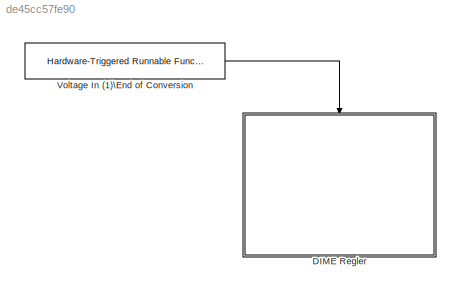
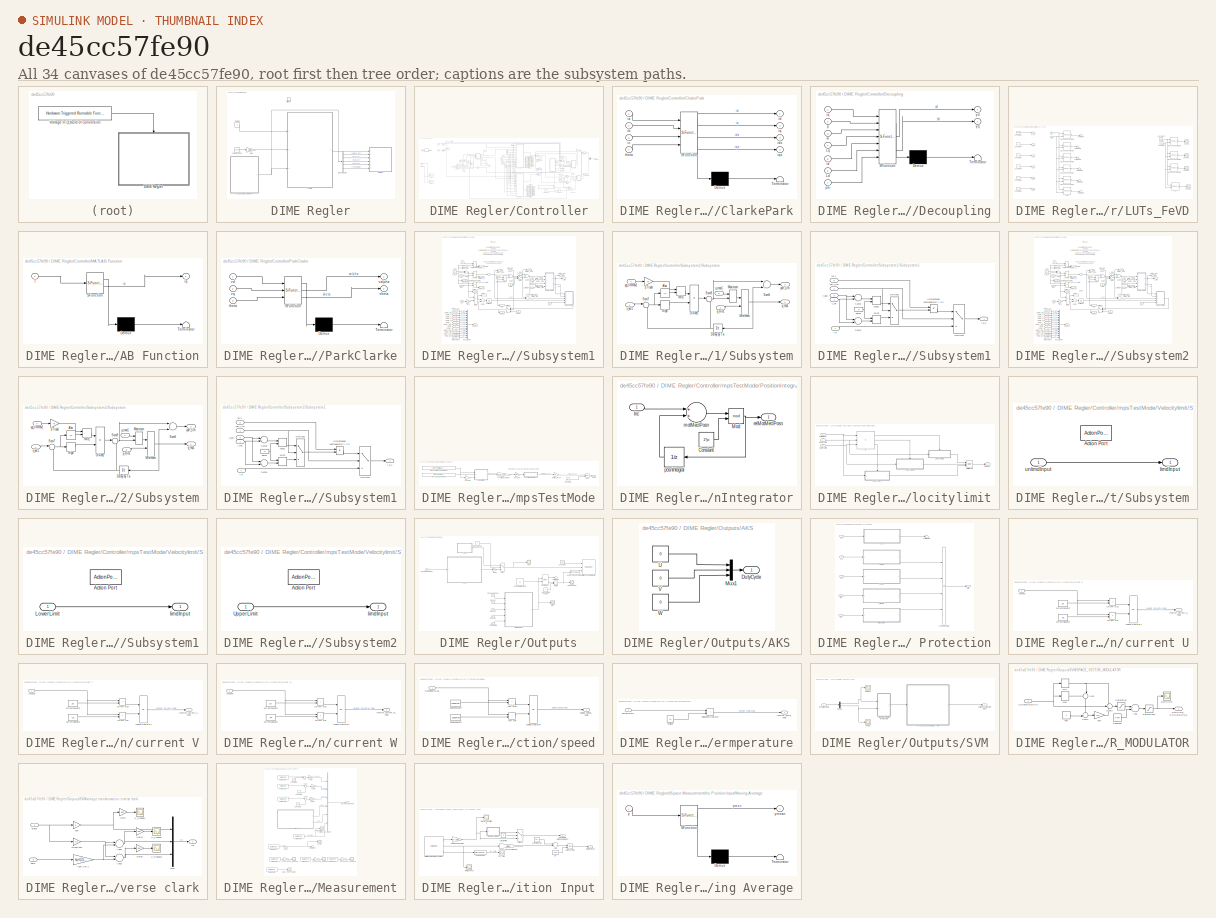
[diagram: thumbnail index - all 34 canvases of the model, root first then tree order]
MODEL slx_de45cc57fe90
KIND model
CONFIG AbsTol = auto
CONFIG EnableMultiTasking = off
CONFIG FixedStep = 0.5
CONFIG InitFcn = , if any(exist('dsmpb_private', 'file') ~= 0), dsmpb_private('dsmpb_mdlclblib', 'Init', bdroot); end,\nload('LUT_PSM.mat')\nload('Torque_ts.mat')\n\np = 1;\nL_q = 1.575e-3;\nL_d = L_q;\nPsi_M = 0.0353*2*pi;\nR_s = 639e-3;\nTs = 1/40e3;\nJ_ges = 9.56e-5;\nd_viskos = 0.01;    \nmpsTestMaxVelocityDmd = 166.7;\nmpsTestVelocityDmd = 0;\nEDC_CURRENT_CONTROL_EXECUTION_PERIOD = 4e-5;\n  
CONFIG MaxStep = auto
CONFIG MinStep = auto
CONFIG PostLoadFcn = if any(exist('dsrtsu_mdlpostloadfcn', 'file') ~= 0), dsrtsu_mdlpostloadfcn('Execute', bdroot); end
CONFIG RelTol = 1e-3
CONFIG SampleTimeConstraint = Unconstrained
CONFIG Solver = ode1
CONFIG SolverName = ode1
CONFIG StartTime = 0.0
CONFIG StopTime = inf
BLOCK [SubSystem] DIME Regler
  Ports = [0, 0, 0, 1]
  RequestExecContextInheritance = off
BLOCK [BusSelector] DIME Regler/Bus Selector
  OutputAsBus = off
  OutputSignals = Omega_rps,Iphase1,Iphase2,Iphase3,Temperature
  Ports = [1, 5]
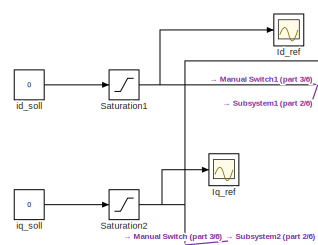
[diagram: DIME Regler/Controller - part 1/6, top left region]
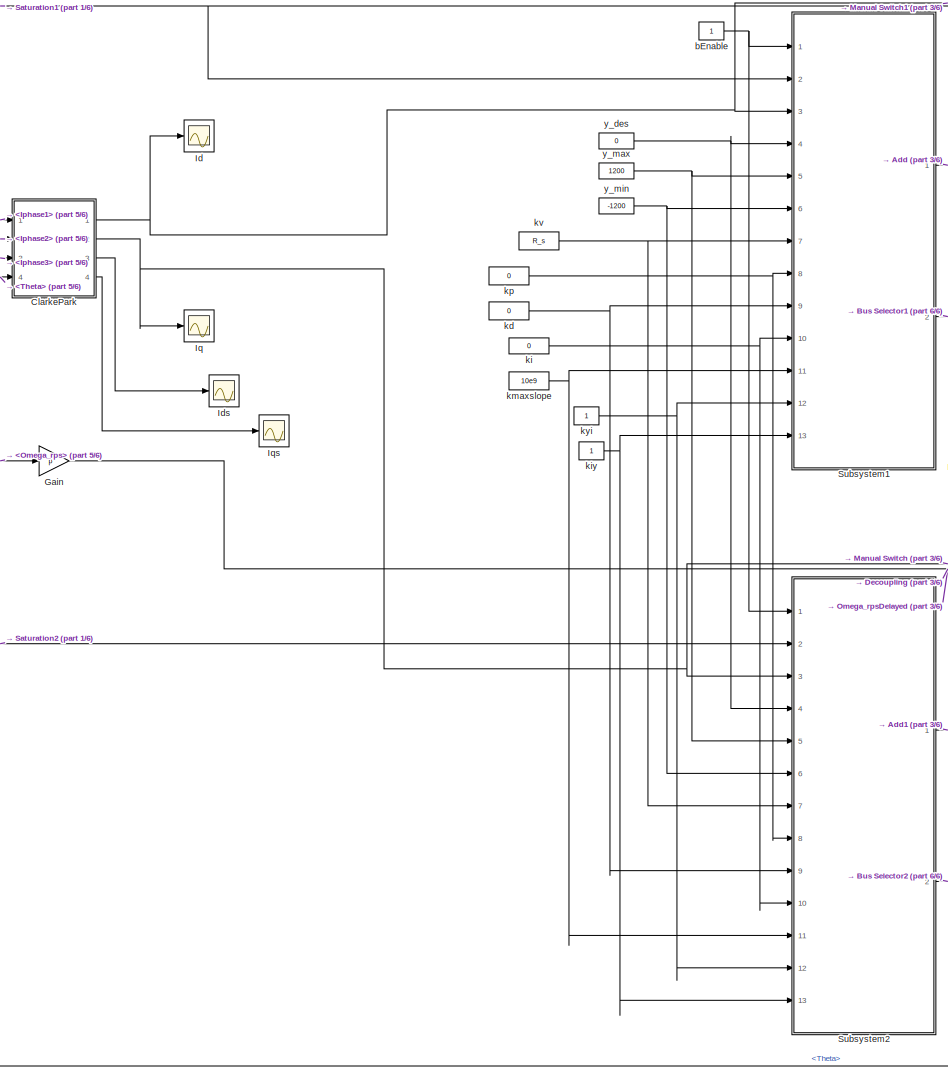
[diagram: DIME Regler/Controller - part 2/6, center side, full height]
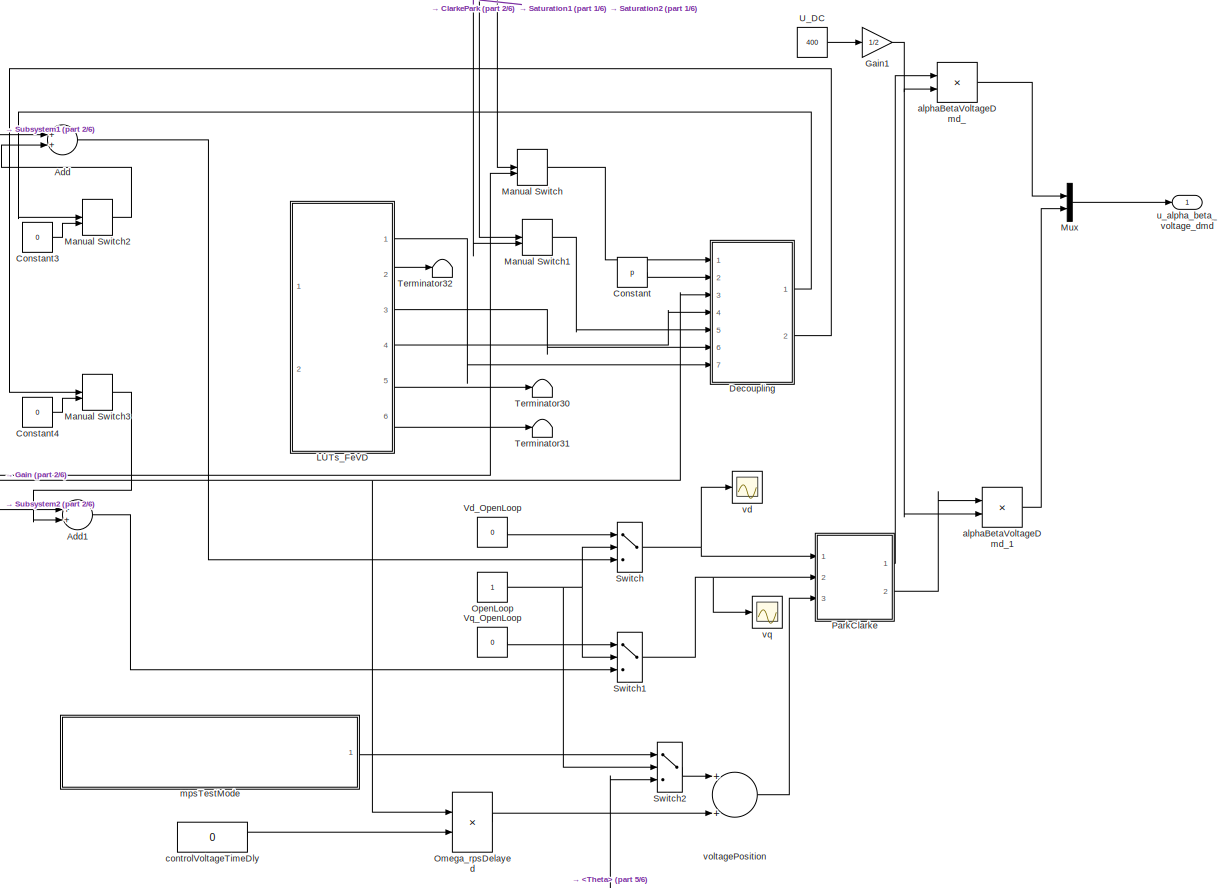
[diagram: DIME Regler/Controller - part 3/6, right side, full height]
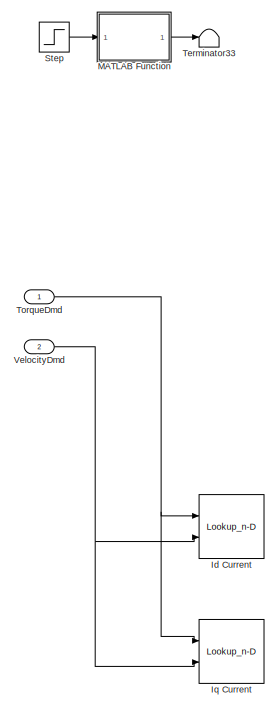
[diagram: DIME Regler/Controller - part 4/6, middle left region]
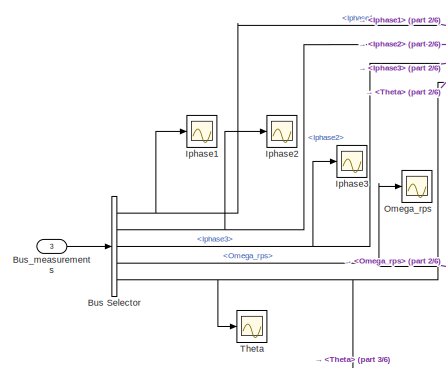
[diagram: DIME Regler/Controller - part 5/6, middle left region]
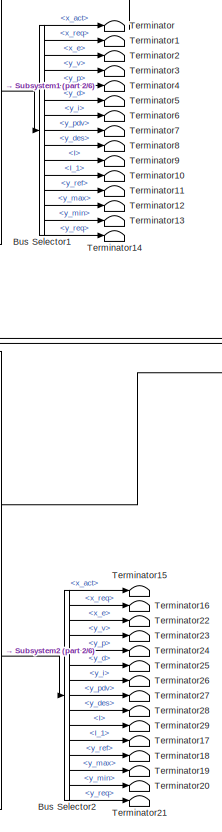
[diagram: DIME Regler/Controller - part 6/6, central region]
BLOCK [SubSystem] DIME Regler/Controller
  Ports = [3, 1]
  RequestExecContextInheritance = off
BLOCK [Sum] DIME Regler/Controller/Add
  InputSameDT = off
  OutDataTypeStr = Inherit: Inherit via internal rule
  Ports = [2, 1]
  SaturateOnIntegerOverflow = off
BLOCK [Sum] DIME Regler/Controller/Add1
  InputSameDT = off
  OutDataTypeStr = Inherit: Inherit via internal rule
  Ports = [2, 1]
  SaturateOnIntegerOverflow = off
BLOCK [BusSelector] DIME Regler/Controller/Bus Selector
  OutputAsBus = off
  OutputSignals = Iphase1,Iphase2,Iphase3,Omega_rps,Theta
  Ports = [1, 5]
BLOCK [BusSelector] DIME Regler/Controller/Bus Selector1
  OutputAsBus = off
  OutputSignals = x_act,x_req,x_e,y_v,y_p,y_d,y_i,y_pdv,y_des,I,I_1,y_ref,y_max,y_min,y_req
  Ports = [1, 15]
BLOCK [BusSelector] DIME Regler/Controller/Bus Selector2
  OutputAsBus = off
  OutputSignals = x_act,x_req,x_e,y_v,y_p,y_d,y_i,y_pdv,y_des,I,I_1,y_ref,y_max,y_min,y_req
  Ports = [1, 15]
BLOCK [Inport] DIME Regler/Controller/Bus_measurements
  IconDisplay = Port number
  Port = 3
BLOCK [SubSystem] DIME Regler/Controller/ClarkePark
  ErrorFcn = Stateflow.Translate.translate
  PermitHierarchicalResolution = ExplicitOnly
  Ports = [4, 4]
  RequestExecContextInheritance = off
  SFBlockType = MATLAB Function
  TreatAsAtomicUnit = on
BLOCK [Demux] DIME Regler/Controller/ClarkePark/ Demux 
  DisplayOption = bar
  Outputs = 1
  Ports = [1, 1]
BLOCK [S-Function] DIME Regler/Controller/ClarkePark/ SFunction 
  EnableBusSupport = on
  FunctionName = sf_sfun
  PortCounts = [4 5]
  Ports = [4, 5]
  SFcnIsStateOwnerBlock = off
  SFunctionDeploymentMode = off
  Tag = Stateflow S-Function Model 21
BLOCK [Terminator] DIME Regler/Controller/ClarkePark/ Terminator 
BLOCK [Inport] DIME Regler/Controller/ClarkePark/ia
  IconDisplay = Port number
BLOCK [Inport] DIME Regler/Controller/ClarkePark/ib
  IconDisplay = Port number
  Port = 2
BLOCK [Inport] DIME Regler/Controller/ClarkePark/ic
  IconDisplay = Port number
  Port = 3
BLOCK [Outport] DIME Regler/Controller/ClarkePark/id
  IconDisplay = Port number
BLOCK [Outport] DIME Regler/Controller/ClarkePark/ids
  IconDisplay = Port number
  Port = 3
BLOCK [Outport] DIME Regler/Controller/ClarkePark/iq
  IconDisplay = Port number
  Port = 2
BLOCK [Outport] DIME Regler/Controller/ClarkePark/iqs
  IconDisplay = Port number
  Port = 4
BLOCK [Inport] DIME Regler/Controller/ClarkePark/theta
  IconDisplay = Port number
  Port = 4
BLOCK [Constant] DIME Regler/Controller/Constant
  Value = p
BLOCK [Constant] DIME Regler/Controller/Constant3
  Value = 0
BLOCK [Constant] DIME Regler/Controller/Constant4
  Value = 0
BLOCK [SubSystem] DIME Regler/Controller/Decoupling
  ErrorFcn = Stateflow.Translate.translate
  PermitHierarchicalResolution = ExplicitOnly
  Ports = [7, 2]
  RequestExecContextInheritance = off
  SFBlockType = MATLAB Function
  TreatAsAtomicUnit = on
BLOCK [Demux] DIME Regler/Controller/Decoupling/ Demux 
  DisplayOption = bar
  Outputs = 1
  Ports = [1, 1]
BLOCK [S-Function] DIME Regler/Controller/Decoupling/ SFunction 
  EnableBusSupport = on
  FunctionName = sf_sfun
  PortCounts = [7 3]
  Ports = [7, 3]
  SFcnIsStateOwnerBlock = off
  SFunctionDeploymentMode = off
  Tag = Stateflow S-Function Model 2
BLOCK [Terminator] DIME Regler/Controller/Decoupling/ Terminator 
BLOCK [Inport] DIME Regler/Controller/Decoupling/Ld
  IconDisplay = Port number
  Port = 6
BLOCK [Inport] DIME Regler/Controller/Decoupling/Lq
  IconDisplay = Port number
  Port = 4
BLOCK [Inport] DIME Regler/Controller/Decoupling/id
  IconDisplay = Port number
  Port = 5
BLOCK [Inport] DIME Regler/Controller/Decoupling/iq
  IconDisplay = Port number
BLOCK [Inport] DIME Regler/Controller/Decoupling/p
  IconDisplay = Port number
  Port = 2
BLOCK [Inport] DIME Regler/Controller/Decoupling/phi
  IconDisplay = Port number
  Port = 7
BLOCK [Inport] DIME Regler/Controller/Decoupling/w
  IconDisplay = Port number
  Port = 3
BLOCK [Outport] DIME Regler/Controller/Decoupling/yd
  IconDisplay = Port number
  VectorParamsAs1DForOutWhenUnconnected = on
BLOCK [Outport] DIME Regler/Controller/Decoupling/yq
  IconDisplay = Port number
  Port = 2
  VectorParamsAs1DForOutWhenUnconnected = on
BLOCK [Gain] DIME Regler/Controller/Gain
  Gain = p
  OutDataTypeStr = Inherit: Inherit via internal rule
  ParamDataTypeStr = Inherit: Inherit via internal rule
  SaturateOnIntegerOverflow = off
BLOCK [Gain] DIME Regler/Controller/Gain1
  Gain = 1/2
  OutDataTypeStr = Inherit: Inherit via internal rule
  ParamDataTypeStr = Inherit: Inherit via internal rule
  SaturateOnIntegerOverflow = off
BLOCK [Scope] DIME Regler/Controller/Id
  Floating = off
  NumInputPorts = 1
  Ports = [1]
  ScopeSpecificationString = Simulink.scopes.TimeScopeBlockCfg('CurrentConfiguration', extmgr.ConfigurationSet(extmgr.Configuration('Core','General UI',true),extmgr.Configuration('Core','Source UI',true),extmgr.Configuration('Sources','WiredSimulink',true,'DataLoggingVariableName','ScopeData3'),extmgr.Configuration('Visuals','Time Domain',true),extmgr.Configuration('Tools','Plot Navigation',true),extmgr.Configuration('Tools',...<+40ch>  <repeated x4 — deduplicated; at blocks: Id, DC, Vbeta1, U_PhaseU>
BLOCK [Lookup_n-D] DIME Regler/Controller/Id Current
  BreakpointsForDimension1 = motor_KF.motTorqueDmd
  BreakpointsForDimension2 = motor_KF.motAbsltMeclVelocity
  Commented = on
  InternalRulePriority = Speed
  Ports = [2, 1]
  RndMeth = Simplest
  Table = motor_KF.idcurrent
BLOCK [Scope] DIME Regler/Controller/Id_ref
  Floating = off
  NumInputPorts = 1
  Ports = [1]
  ScopeSpecificationString = Simulink.scopes.TimeScopeBlockCfg('CurrentConfiguration', extmgr.ConfigurationSet(extmgr.Configuration('Core','General UI',true),extmgr.Configuration('Core','Source UI',true),extmgr.Configuration('Sources','WiredSimulink',true,'DataLoggingVariableName','ScopeData13'),extmgr.Configuration('Visuals','Time Domain',true,'SerializedDisplays',{struct('MinYLimReal','-0.75144','MaxYLimReal','6.76296','YLa...<+1375ch>
BLOCK [Scope] DIME Regler/Controller/Ids
  Floating = off
  NumInputPorts = 1
  Ports = [1]
  ScopeSpecificationString = Simulink.scopes.TimeScopeBlockCfg('CurrentConfiguration', extmgr.ConfigurationSet(extmgr.Configuration('Core','General UI',true),extmgr.Configuration('Core','Source UI',true),extmgr.Configuration('Sources','WiredSimulink',true,'DataLoggingVariableName','ScopeData1'),extmgr.Configuration('Visuals','Time Domain',true),extmgr.Configuration('Tools','Plot Navigation',true),extmgr.Configuration('Tools',...<+40ch>  <repeated x7 — deduplicated; at blocks: Ids, Output Enable, Diag_PhaseVoltage, Omega_rpsUnfilterd, inc_valid, motMecPosn, U_PhaseW>
BLOCK [Scope] DIME Regler/Controller/Iphase1
  Floating = off
  NumInputPorts = 1
  Ports = [1]
  ScopeSpecificationString = Simulink.scopes.TimeScopeBlockCfg('CurrentConfiguration', extmgr.ConfigurationSet(extmgr.Configuration('Core','General UI',true),extmgr.Configuration('Core','Source UI',true),extmgr.Configuration('Sources','WiredSimulink',true,'DataLoggingVariableName','ScopeData5'),extmgr.Configuration('Visuals','Time Domain',true),extmgr.Configuration('Tools','Plot Navigation',true),extmgr.Configuration('Tools',...<+40ch>
BLOCK [Scope] DIME Regler/Controller/Iphase2
  Floating = off
  NumInputPorts = 1
  Ports = [1]
  ScopeSpecificationString = Simulink.scopes.TimeScopeBlockCfg('CurrentConfiguration', extmgr.ConfigurationSet(extmgr.Configuration('Core','General UI',true),extmgr.Configuration('Core','Source UI',true),extmgr.Configuration('Sources','WiredSimulink',true,'DataLoggingVariableName','ScopeData6'),extmgr.Configuration('Visuals','Time Domain',true),extmgr.Configuration('Tools','Plot Navigation',true),extmgr.Configuration('Tools',...<+40ch>
BLOCK [Scope] DIME Regler/Controller/Iphase3
  Floating = off
  NumInputPorts = 1
  Ports = [1]
  ScopeSpecificationString = Simulink.scopes.TimeScopeBlockCfg('CurrentConfiguration', extmgr.ConfigurationSet(extmgr.Configuration('Core','General UI',true),extmgr.Configuration('Core','Source UI',true),extmgr.Configuration('Sources','WiredSimulink',true,'DataLoggingVariableName','ScopeData7'),extmgr.Configuration('Visuals','Time Domain',true),extmgr.Configuration('Tools','Plot Navigation',true),extmgr.Configuration('Tools',...<+40ch>
BLOCK [Scope] DIME Regler/Controller/Iq
  Floating = off
  NumInputPorts = 1
  Ports = [1]
  ScopeSpecificationString = Simulink.scopes.TimeScopeBlockCfg('CurrentConfiguration', extmgr.ConfigurationSet(extmgr.Configuration('Core','General UI',true),extmgr.Configuration('Core','Source UI',true),extmgr.Configuration('Sources','WiredSimulink',true,'DataLoggingVariableName','ScopeData4'),extmgr.Configuration('Visuals','Time Domain',true),extmgr.Configuration('Tools','Plot Navigation',true),extmgr.Configuration('Tools',...<+40ch>
BLOCK [Lookup_n-D] DIME Regler/Controller/Iq Current
  BreakpointsForDimension1 = motor_KF.motTorqueDmd
  BreakpointsForDimension2 = motor_KF.motAbsltMeclVelocity
  Commented = on
  InternalRulePriority = Speed
  Ports = [2, 1]
  RndMeth = Simplest
  Table = motor_KF.iqcurrent
BLOCK [Scope] DIME Regler/Controller/Iq_ref
  Floating = off
  NumInputPorts = 1
  Ports = [1]
  ScopeSpecificationString = Simulink.scopes.TimeScopeBlockCfg('CurrentConfiguration', extmgr.ConfigurationSet(extmgr.Configuration('Core','General UI',true),extmgr.Configuration('Core','Source UI',true),extmgr.Configuration('Sources','WiredSimulink',true,'DataLoggingVariableName','ScopeData1'),extmgr.Configuration('Visuals','Time Domain',true,'SerializedDisplays',{struct('MinYLimReal','-0.75144','MaxYLimReal','6.76296','YLab...<+1366ch>
BLOCK [Scope] DIME Regler/Controller/Iqs
  Floating = off
  NumInputPorts = 1
  Ports = [1]
  ScopeSpecificationString = Simulink.scopes.TimeScopeBlockCfg('CurrentConfiguration', extmgr.ConfigurationSet(extmgr.Configuration('Core','General UI',true),extmgr.Configuration('Core','Source UI',true),extmgr.Configuration('Sources','WiredSimulink',true,'DataLoggingVariableName','ScopeData2'),extmgr.Configuration('Visuals','Time Domain',true),extmgr.Configuration('Tools','Plot Navigation',true),extmgr.Configuration('Tools',...<+40ch>  <repeated x4 — deduplicated; at blocks: Iqs, Error, U_DC, U_PhaseV>
BLOCK [SubSystem] DIME Regler/Controller/LUTs_FeVD
  Ports = [2, 6]
  RequestExecContextInheritance = off
BLOCK [Lookup_n-D] DIME Regler/Controller/LUTs_FeVD/2-D Lookup Table id1
  BreakpointsForDimension1 = [0	20	40	60	80	100	120	140	160	180	200	220\n]
  BreakpointsForDimension2 = [-220\n-200\n-180\n-160\n-140\n-120\n-100\n-80\n-60\n-40\n-20\n0\n]
  InternalRulePriority = Speed
  Ports = [2, 1]
  RndMeth = Simplest
  Table = motor_KF.Psi_d'
BLOCK [Lookup_n-D] DIME Regler/Controller/LUTs_FeVD/2-D Lookup Table id2
  BreakpointsForDimension1 = q
  BreakpointsForDimension2 = d
  InternalRulePriority = Speed
  Ports = [2, 1]
  RndMeth = Simplest
  Table = Psiqd
BLOCK [Lookup_n-D] DIME Regler/Controller/LUTs_FeVD/2-D Lookup Table id3
  BreakpointsForDimension1 = [0	20	40	60	80	100	120	140	160	180	200	220\n]
  BreakpointsForDimension2 = [-220\n-200\n-180\n-160\n-140\n-120\n-100\n-80\n-60\n-40\n-20\n0\n]
  InternalRulePriority = Speed
  Ports = [2, 1]
  RndMeth = Simplest
  Table = motor_KF.Psi_d'
BLOCK [Lookup_n-D] DIME Regler/Controller/LUTs_FeVD/2-D Lookup Table id4
  BreakpointsForDimension1 = motor_KF.iqgrid
  BreakpointsForDimension2 = motor_KF.idgrid
  InternalRulePriority = Speed
  Ports = [2, 1]
  RndMeth = Simplest
  Table = motor_KF.Psi_q'
BLOCK [Lookup_n-D] DIME Regler/Controller/LUTs_FeVD/2-D Lookup Table id5
  BreakpointsForDimension1 = motor_KF.iqgrid
  BreakpointsForDimension2 = motor_KF.idgrid
  InternalRulePriority = Speed
  Ports = [2, 1]
  RndMeth = Simplest
  Table = motor_KF.Ld'
BLOCK [Lookup_n-D] DIME Regler/Controller/LUTs_FeVD/2-D Lookup Table id6
  BreakpointsForDimension1 = motor_KF.iqgrid
  BreakpointsForDimension2 = motor_KF.idgrid
  InternalRulePriority = Speed
  Ports = [2, 1]
  RndMeth = Simplest
  Table = motor_KF.Psi_q'
BLOCK [Lookup_n-D] DIME Regler/Controller/LUTs_FeVD/2-D Lookup Table id8
  BreakpointsForDimension1 = motor_KF.iqgrid
  BreakpointsForDimension2 = motor_KF.idgrid
  InternalRulePriority = Speed
  Ports = [2, 1]
  RndMeth = Simplest
  Table = motor_KF.Ld'
BLOCK [Lookup_n-D] DIME Regler/Controller/LUTs_FeVD/2-D Lookup Table iq1
  BreakpointsForDimension1 = q
  BreakpointsForDimension2 = d
  InternalRulePriority = Speed
  Ports = [2, 1]
  RndMeth = Simplest
  Table = Psidq
BLOCK [Constant] DIME Regler/Controller/LUTs_FeVD/Constant
  Value = -180
BLOCK [Constant] DIME Regler/Controller/LUTs_FeVD/Constant1
  Value = 100
BLOCK [Constant] DIME Regler/Controller/LUTs_FeVD/Constant2
  Value = L_q
BLOCK [Constant] DIME Regler/Controller/LUTs_FeVD/Constant3
  Value = 0
BLOCK [Constant] DIME Regler/Controller/LUTs_FeVD/Constant4
  Value = 0
BLOCK [Constant] DIME Regler/Controller/LUTs_FeVD/Constant5
  Value = Psi_M
BLOCK [Constant] DIME Regler/Controller/LUTs_FeVD/Constant6
  Value = 0
BLOCK [Constant] DIME Regler/Controller/LUTs_FeVD/Constant7
  Value = L_d
BLOCK [Outport] DIME Regler/Controller/LUTs_FeVD/Ldd
  IconDisplay = Port number
  Port = 3
  VectorParamsAs1DForOutWhenUnconnected = on
BLOCK [Outport] DIME Regler/Controller/LUTs_FeVD/Ldq
  IconDisplay = Port number
  Port = 5
  VectorParamsAs1DForOutWhenUnconnected = on
BLOCK [Lookup_n-D] DIME Regler/Controller/LUTs_FeVD/Lq
  BreakpointsForDimension1 = motor_KF.iqgrid
  BreakpointsForDimension2 = motor_KF.idgrid
  InternalRulePriority = Speed
  Ports = [2, 1]
  RndMeth = Simplest
  Table = motor_KF.Lq'
BLOCK [Lookup_n-D] DIME Regler/Controller/LUTs_FeVD/Lq1
  BreakpointsForDimension1 = motor_KF.iqgrid
  BreakpointsForDimension2 = motor_KF.idgrid
  InternalRulePriority = Speed
  Ports = [2, 1]
  RndMeth = Simplest
  Table = motor_KF.Lq'
BLOCK [Outport] DIME Regler/Controller/LUTs_FeVD/Lqd
  IconDisplay = Port number
  Port = 6
  VectorParamsAs1DForOutWhenUnconnected = on
BLOCK [Outport] DIME Regler/Controller/LUTs_FeVD/Lqq
  IconDisplay = Port number
  Port = 4
  VectorParamsAs1DForOutWhenUnconnected = on
BLOCK [Outport] DIME Regler/Controller/LUTs_FeVD/Psi_M
  IconDisplay = Port number
  VectorParamsAs1DForOutWhenUnconnected = on
BLOCK [Outport] DIME Regler/Controller/LUTs_FeVD/Psiq
  IconDisplay = Port number
  Port = 2
  VectorParamsAs1DForOutWhenUnconnected = on
BLOCK [Scope] DIME Regler/Controller/LUTs_FeVD/Scope
  Floating = off
  NumInputPorts = 1
  Ports = [1]
  ScopeSpecificationString = Simulink.scopes.TimeScopeBlockCfg('CurrentConfiguration', extmgr.ConfigurationSet(extmgr.Configuration('Core','General UI',true),extmgr.Configuration('Core','Source UI',true),extmgr.Configuration('Sources','WiredSimulink',true,'DataLoggingVariableName','ScopeData1'),extmgr.Configuration('Visuals','Time Domain',true,'SerializedDisplays',{struct('MinYLimReal','-0.03058','MaxYLimReal','-0.01058','YLa...<+1416ch>
BLOCK [Scope] DIME Regler/Controller/LUTs_FeVD/Scope1
  Floating = off
  NumInputPorts = 1
  Ports = [1]
  ScopeSpecificationString = Simulink.scopes.TimeScopeBlockCfg('CurrentConfiguration', extmgr.ConfigurationSet(extmgr.Configuration('Core','General UI',true),extmgr.Configuration('Core','Source UI',true),extmgr.Configuration('Sources','WiredSimulink',true,'DataLoggingVariableName','ScopeData2'),extmgr.Configuration('Visuals','Time Domain',true,'SerializedDisplays',{struct('MinYLimReal','-0.05328','MaxYLimReal','-0.03328','YLa...<+1396ch>
BLOCK [Scope] DIME Regler/Controller/LUTs_FeVD/Scope2
  Floating = off
  NumInputPorts = 1
  Ports = [1]
  ScopeSpecificationString = Simulink.scopes.TimeScopeBlockCfg('CurrentConfiguration', extmgr.ConfigurationSet(extmgr.Configuration('Core','General UI',true),extmgr.Configuration('Core','Source UI',true),extmgr.Configuration('Sources','WiredSimulink',true,'DataLoggingVariableName','ScopeData3'),extmgr.Configuration('Visuals','Time Domain',true,'SerializedDisplays',{struct('MinYLimReal','-0.05328','MaxYLimReal','-0.03328','YLa...<+1396ch>
BLOCK [Scope] DIME Regler/Controller/LUTs_FeVD/Scope3
  Floating = off
  NumInputPorts = 1
  Ports = [1]
  ScopeSpecificationString = Simulink.scopes.TimeScopeBlockCfg('CurrentConfiguration', extmgr.ConfigurationSet(extmgr.Configuration('Core','General UI',true),extmgr.Configuration('Core','Source UI',true),extmgr.Configuration('Sources','WiredSimulink',true,'DataLoggingVariableName','ScopeData4'),extmgr.Configuration('Visuals','Time Domain',true,'SerializedDisplays',{struct('MinYLimReal','-0.05328','MaxYLimReal','-0.03328','YLa...<+1396ch>
BLOCK [Terminator] DIME Regler/Controller/LUTs_FeVD/Terminator
BLOCK [Terminator] DIME Regler/Controller/LUTs_FeVD/Terminator1
BLOCK [Terminator] DIME Regler/Controller/LUTs_FeVD/Terminator2
BLOCK [Terminator] DIME Regler/Controller/LUTs_FeVD/Terminator3
BLOCK [Terminator] DIME Regler/Controller/LUTs_FeVD/Terminator4
BLOCK [Terminator] DIME Regler/Controller/LUTs_FeVD/Terminator5
BLOCK [Inport] DIME Regler/Controller/LUTs_FeVD/id
  IconDisplay = Port number
  Port = 2
BLOCK [Inport] DIME Regler/Controller/LUTs_FeVD/iq
  IconDisplay = Port number
BLOCK [SubSystem] DIME Regler/Controller/MATLAB Function
  ErrorFcn = Stateflow.Translate.translate
  PermitHierarchicalResolution = ExplicitOnly
  Ports = [1, 1]
  RequestExecContextInheritance = off
  SFBlockType = MATLAB Function
  TreatAsAtomicUnit = on
BLOCK [Demux] DIME Regler/Controller/MATLAB Function/ Demux 
  DisplayOption = bar
  Outputs = 1
  Ports = [1, 1]
BLOCK [S-Function] DIME Regler/Controller/MATLAB Function/ SFunction 
  EnableBusSupport = on
  FunctionName = sf_sfun
  PortCounts = [1 2]
  Ports = [1, 2]
  SFcnIsStateOwnerBlock = off
  SFunctionDeploymentMode = off
  Tag = Stateflow S-Function Model 3
BLOCK [Terminator] DIME Regler/Controller/MATLAB Function/ Terminator 
BLOCK [Inport] DIME Regler/Controller/MATLAB Function/T
  IconDisplay = Port number
BLOCK [Outport] DIME Regler/Controller/MATLAB Function/iq
  IconDisplay = Port number
  VectorParamsAs1DForOutWhenUnconnected = on
BLOCK [ManualSwitch] DIME Regler/Controller/Manual Switch
BLOCK [ManualSwitch] DIME Regler/Controller/Manual Switch1
BLOCK [ManualSwitch] DIME Regler/Controller/Manual Switch2
  CurrentSetting = 0
BLOCK [ManualSwitch] DIME Regler/Controller/Manual Switch3
  CurrentSetting = 0
BLOCK [Mux] DIME Regler/Controller/Mux
  DisplayOption = bar
  Inputs = 2
  Ports = [2, 1]
BLOCK [Scope] DIME Regler/Controller/Omega_rps
  Floating = off
  NumInputPorts = 1
  Ports = [1]
  ScopeSpecificationString = Simulink.scopes.TimeScopeBlockCfg('CurrentConfiguration', extmgr.ConfigurationSet(extmgr.Configuration('Core','General UI',true),extmgr.Configuration('Core','Source UI',true),extmgr.Configuration('Sources','WiredSimulink',true,'DataLoggingVariableName','ScopeData8'),extmgr.Configuration('Visuals','Time Domain',true),extmgr.Configuration('Tools','Plot Navigation',true),extmgr.Configuration('Tools',...<+40ch>
BLOCK [Product] DIME Regler/Controller/Omega_rpsDelayed
  InputSameDT = off
  Inputs = **
  OutDataTypeStr = Inherit: Inherit via internal rule
  Ports = [2, 1]
  SaturateOnIntegerOverflow = off
BLOCK [Constant] DIME Regler/Controller/OpenLoop
BLOCK [SubSystem] DIME Regler/Controller/ParkClarke
  ErrorFcn = Stateflow.Translate.translate
  PermitHierarchicalResolution = ExplicitOnly
  Ports = [3, 2]
  RequestExecContextInheritance = off
  SFBlockType = MATLAB Function
  TreatAsAtomicUnit = on
BLOCK [Demux] DIME Regler/Controller/ParkClarke/ Demux 
  DisplayOption = bar
  Outputs = 1
  Ports = [1, 1]
BLOCK [S-Function] DIME Regler/Controller/ParkClarke/ SFunction 
  EnableBusSupport = on
  FunctionName = sf_sfun
  PortCounts = [3 3]
  Ports = [3, 3]
  SFcnIsStateOwnerBlock = off
  SFunctionDeploymentMode = off
  Tag = Stateflow S-Function Model 1
BLOCK [Terminator] DIME Regler/Controller/ParkClarke/ Terminator 
BLOCK [Inport] DIME Regler/Controller/ParkClarke/theta
  IconDisplay = Port number
  Port = 3
BLOCK [Outport] DIME Regler/Controller/ParkClarke/valpha
  IconDisplay = Port number
  VectorParamsAs1DForOutWhenUnconnected = on
BLOCK [Outport] DIME Regler/Controller/ParkClarke/vbeta
  IconDisplay = Port number
  Port = 2
  VectorParamsAs1DForOutWhenUnconnected = on
BLOCK [Inport] DIME Regler/Controller/ParkClarke/vd
  IconDisplay = Port number
BLOCK [Inport] DIME Regler/Controller/ParkClarke/vq
  IconDisplay = Port number
  Port = 2
BLOCK [Saturate] DIME Regler/Controller/Saturation1
  InputPortMap = u0
  LinearizeAsGain = off
  LowerLimit = -18
  Ports = [1, 1]
  UpperLimit = 18
BLOCK [Saturate] DIME Regler/Controller/Saturation2
  InputPortMap = u0
  LinearizeAsGain = off
  LowerLimit = 0
  Ports = [1, 1]
  UpperLimit = 18
BLOCK [Step] DIME Regler/Controller/Step
  After = 0
  Time = 0.05
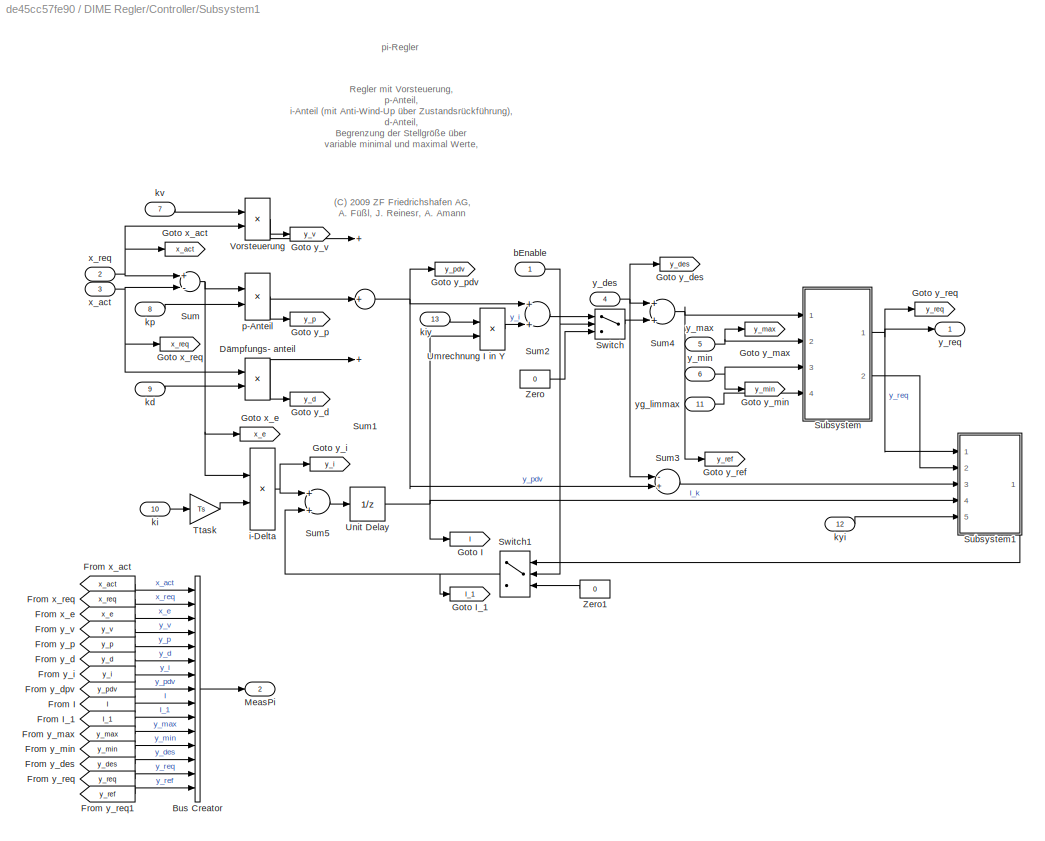
BLOCK [SubSystem] DIME Regler/Controller/Subsystem1
  Ports = [13, 2]
  RequestExecContextInheritance = off
BLOCK [BusCreator] DIME Regler/Controller/Subsystem1/Bus Creator
  DisplayOption = bar
  InheritFromInputs = on
  Inputs = 15
  Ports = [15, 1]
BLOCK [Product] DIME Regler/Controller/Subsystem1/Dämpfungs- anteil
  InputSameDT = off
  Ports = [2, 1]
  RndMeth = Floor
BLOCK [From] DIME Regler/Controller/Subsystem1/From I
  CloseFcn = tagdialog Close
  GotoTag = I
BLOCK [From] DIME Regler/Controller/Subsystem1/From I_1
  CloseFcn = tagdialog Close
  GotoTag = I_1
BLOCK [From] DIME Regler/Controller/Subsystem1/From x_act
  CloseFcn = tagdialog Close
  GotoTag = x_act
BLOCK [From] DIME Regler/Controller/Subsystem1/From x_e
  CloseFcn = tagdialog Close
  GotoTag = x_e
BLOCK [From] DIME Regler/Controller/Subsystem1/From x_req
  CloseFcn = tagdialog Close
  GotoTag = x_req
BLOCK [From] DIME Regler/Controller/Subsystem1/From y_d
  CloseFcn = tagdialog Close
  GotoTag = y_d
BLOCK [From] DIME Regler/Controller/Subsystem1/From y_des
  CloseFcn = tagdialog Close
  GotoTag = y_des
BLOCK [From] DIME Regler/Controller/Subsystem1/From y_dpv
  CloseFcn = tagdialog Close
  GotoTag = y_pdv
BLOCK [From] DIME Regler/Controller/Subsystem1/From y_i
  CloseFcn = tagdialog Close
  GotoTag = y_i
BLOCK [From] DIME Regler/Controller/Subsystem1/From y_max
  CloseFcn = tagdialog Close
  GotoTag = y_max
BLOCK [From] DIME Regler/Controller/Subsystem1/From y_min
  CloseFcn = tagdialog Close
  GotoTag = y_min
BLOCK [From] DIME Regler/Controller/Subsystem1/From y_p
  CloseFcn = tagdialog Close
  GotoTag = y_p
BLOCK [From] DIME Regler/Controller/Subsystem1/From y_req
  CloseFcn = tagdialog Close
  GotoTag = y_req
BLOCK [From] DIME Regler/Controller/Subsystem1/From y_req1
  CloseFcn = tagdialog Close
  GotoTag = y_ref
BLOCK [From] DIME Regler/Controller/Subsystem1/From y_v
  CloseFcn = tagdialog Close
  GotoTag = y_v
BLOCK [Goto] DIME Regler/Controller/Subsystem1/Goto I
  GotoTag = I
BLOCK [Goto] DIME Regler/Controller/Subsystem1/Goto I_1
  GotoTag = I_1
BLOCK [Goto] DIME Regler/Controller/Subsystem1/Goto x_act
  GotoTag = x_act
BLOCK [Goto] DIME Regler/Controller/Subsystem1/Goto x_e
  GotoTag = x_e
BLOCK [Goto] DIME Regler/Controller/Subsystem1/Goto x_req
  GotoTag = x_req
BLOCK [Goto] DIME Regler/Controller/Subsystem1/Goto y_d
  GotoTag = y_d
BLOCK [Goto] DIME Regler/Controller/Subsystem1/Goto y_des
  GotoTag = y_des
BLOCK [Goto] DIME Regler/Controller/Subsystem1/Goto y_i
  GotoTag = y_i
BLOCK [Goto] DIME Regler/Controller/Subsystem1/Goto y_max
  GotoTag = y_max
BLOCK [Goto] DIME Regler/Controller/Subsystem1/Goto y_min
  GotoTag = y_min
BLOCK [Goto] DIME Regler/Controller/Subsystem1/Goto y_p
  GotoTag = y_p
BLOCK [Goto] DIME Regler/Controller/Subsystem1/Goto y_pdv
  GotoTag = y_pdv
BLOCK [Goto] DIME Regler/Controller/Subsystem1/Goto y_ref
  GotoTag = y_ref
BLOCK [Goto] DIME Regler/Controller/Subsystem1/Goto y_req
  GotoTag = y_req
BLOCK [Goto] DIME Regler/Controller/Subsystem1/Goto y_v
  GotoTag = y_v
BLOCK [Outport] DIME Regler/Controller/Subsystem1/MeasPi
  IconDisplay = Port number
  Port = 2
BLOCK [SubSystem] DIME Regler/Controller/Subsystem1/Subsystem
  Ports = [4, 2]
  RequestExecContextInheritance = off
BLOCK [Gain] DIME Regler/Controller/Subsystem1/Subsystem/1//Ttask
  Gain = Ts
BLOCK [Abs] DIME Regler/Controller/Subsystem1/Subsystem/Abs
  SaturateOnIntegerOverflow = off
BLOCK [UnitDelay] DIME Regler/Controller/Subsystem1/Subsystem/Delay by Ta
  InputProcessing = Elements as channels (sample based)
  SampleTime = -1
BLOCK [Product] DIME Regler/Controller/Subsystem1/Subsystem/Divide2
  InputSameDT = off
  Inputs = **
  OutDataTypeStr = Inherit: Inherit via internal rule
  Ports = [2, 1]
  RndMeth = Floor
  SaturateOnIntegerOverflow = off
BLOCK [MinMax] DIME Regler/Controller/Subsystem1/Subsystem/Maximum
  Inputs = 2
  Ports = [2, 1]
BLOCK [MinMax] DIME Regler/Controller/Subsystem1/Subsystem/Min1
  Inputs = 2
  Ports = [2, 1]
BLOCK [MinMax] DIME Regler/Controller/Subsystem1/Subsystem/Minimum
  Function = max
  Inputs = 2
  Ports = [2, 1]
BLOCK [Signum] DIME Regler/Controller/Subsystem1/Subsystem/Sign
BLOCK [Sum] DIME Regler/Controller/Subsystem1/Subsystem/Sum6
  InputSameDT = off
  Inputs = +-
  OutDataTypeStr = Inherit: Inherit via internal rule
  Ports = [2, 1]
BLOCK [Sum] DIME Regler/Controller/Subsystem1/Subsystem/Sum7
  IconShape = round
  InputSameDT = off
  Inputs = |+-
  OutDataTypeStr = Inherit: Inherit via internal rule
  Ports = [2, 1]
BLOCK [Sum] DIME Regler/Controller/Subsystem1/Subsystem/Sum8
  IconShape = round
  InputSameDT = off
  Inputs = |++
  OutDataTypeStr = Inherit: Inherit via internal rule
  Ports = [2, 1]
BLOCK [Inport] DIME Regler/Controller/Subsystem1/Subsystem/x_act1
  IconDisplay = Port number
BLOCK [Inport] DIME Regler/Controller/Subsystem1/Subsystem/y_max1
  IconDisplay = Port number
  Port = 2
BLOCK [Inport] DIME Regler/Controller/Subsystem1/Subsystem/y_min1
  IconDisplay = Port number
  Port = 3
BLOCK [Outport] DIME Regler/Controller/Subsystem1/Subsystem/y_req1
  IconDisplay = Port number
BLOCK [Outport] DIME Regler/Controller/Subsystem1/Subsystem/ydif_lim
  IconDisplay = Port number
  Port = 2
BLOCK [Inport] DIME Regler/Controller/Subsystem1/Subsystem/yg_limmax1
  IconDisplay = Port number
  Port = 4
BLOCK [SubSystem] DIME Regler/Controller/Subsystem1/Subsystem1
  Ports = [5, 1]
  RequestExecContextInheritance = off
BLOCK [Inport] DIME Regler/Controller/Subsystem1/Subsystem1/I_k
  IconDisplay = Port number
  Port = 4
BLOCK [Outport] DIME Regler/Controller/Subsystem1/Subsystem1/I_k_1
  IconDisplay = Port number
BLOCK [MinMax] DIME Regler/Controller/Subsystem1/Subsystem1/Max1
  Function = max
  Inputs = 2
  Ports = [2, 1]
BLOCK [MinMax] DIME Regler/Controller/Subsystem1/Subsystem1/Min3
  Inputs = 2
  Ports = [2, 1]
BLOCK [Sum] DIME Regler/Controller/Subsystem1/Subsystem1/Sum8
  InputSameDT = off
  Inputs = -+
  OutDataTypeStr = Inherit: Inherit via internal rule
  Ports = [2, 1]
  SaturateOnIntegerOverflow = off
BLOCK [Sum] DIME Regler/Controller/Subsystem1/Subsystem1/Sum9
  InputSameDT = off
  Inputs = -+
  OutDataTypeStr = Inherit: Inherit via internal rule
  Ports = [2, 1]
  SaturateOnIntegerOverflow = off
BLOCK [Switch] DIME Regler/Controller/Subsystem1/Subsystem1/Switch2
  InputSameDT = off
  SaturateOnIntegerOverflow = off
BLOCK [Switch] DIME Regler/Controller/Subsystem1/Subsystem1/Switch3
  Criteria = u2 ~= 0
  InputSameDT = off
  SaturateOnIntegerOverflow = off
BLOCK [Product] DIME Regler/Controller/Subsystem1/Subsystem1/Umrechnung Wertebereich Y in I
  InputSameDT = off
  Ports = [2, 1]
  RndMeth = Floor
BLOCK [Inport] DIME Regler/Controller/Subsystem1/Subsystem1/kyi1
  IconDisplay = Port number
  Port = 5
BLOCK [Inport] DIME Regler/Controller/Subsystem1/Subsystem1/y_pdv
  IconDisplay = Port number
  Port = 3
BLOCK [Inport] DIME Regler/Controller/Subsystem1/Subsystem1/y_ref
  IconDisplay = Port number
BLOCK [Inport] DIME Regler/Controller/Subsystem1/Subsystem1/ydif_lim
  IconDisplay = Port number
  Port = 2
BLOCK [Constant] DIME Regler/Controller/Subsystem1/Subsystem1/zero1
  Value = 0
BLOCK [Sum] DIME Regler/Controller/Subsystem1/Sum
  InputSameDT = off
  Inputs = +-
  OutDataTypeStr = Inherit: Inherit via internal rule
  Ports = [2, 1]
BLOCK [Sum] DIME Regler/Controller/Subsystem1/Sum1
  InputSameDT = off
  Inputs = +++
  OutDataTypeStr = Inherit: Inherit via internal rule
  Ports = [3, 1]
BLOCK [Sum] DIME Regler/Controller/Subsystem1/Sum2
  InputSameDT = off
  OutDataTypeStr = Inherit: Inherit via internal rule
  Ports = [2, 1]
BLOCK [Sum] DIME Regler/Controller/Subsystem1/Sum3
  InputSameDT = off
  Inputs = -+
  OutDataTypeStr = Inherit: Inherit via internal rule
  Ports = [2, 1]
BLOCK [Sum] DIME Regler/Controller/Subsystem1/Sum4
  InputSameDT = off
  OutDataTypeStr = Inherit: Inherit via internal rule
  Ports = [2, 1]
BLOCK [Sum] DIME Regler/Controller/Subsystem1/Sum5
  InputSameDT = off
  OutDataTypeStr = Inherit: Inherit via internal rule
  Ports = [2, 1]
BLOCK [Switch] DIME Regler/Controller/Subsystem1/Switch
  Criteria = u2 > Threshold
  InputSameDT = off
  SaturateOnIntegerOverflow = off
BLOCK [Switch] DIME Regler/Controller/Subsystem1/Switch1
  Criteria = u2 > Threshold
  InputSameDT = off
  SaturateOnIntegerOverflow = off
BLOCK [Gain] DIME Regler/Controller/Subsystem1/Ttask
  Gain = Ts
BLOCK [Product] DIME Regler/Controller/Subsystem1/Umrechnung I in Y
  InputSameDT = off
  Ports = [2, 1]
  RndMeth = Floor
BLOCK [UnitDelay] DIME Regler/Controller/Subsystem1/Unit Delay
  InputProcessing = Elements as channels (sample based)
  SampleTime = -1
BLOCK [Product] DIME Regler/Controller/Subsystem1/Vorsteuerung
  InputSameDT = off
  Ports = [2, 1]
  RndMeth = Floor
BLOCK [Constant] DIME Regler/Controller/Subsystem1/Zero
  Value = 0
BLOCK [Constant] DIME Regler/Controller/Subsystem1/Zero1
  Value = 0
BLOCK [Inport] DIME Regler/Controller/Subsystem1/bEnable
  IconDisplay = Port number
BLOCK [Product] DIME Regler/Controller/Subsystem1/i-Delta
  InputSameDT = off
  Ports = [2, 1]
  RndMeth = Floor
BLOCK [Inport] DIME Regler/Controller/Subsystem1/kd
  IconDisplay = Port number
  Port = 9
BLOCK [Inport] DIME Regler/Controller/Subsystem1/ki
  IconDisplay = Port number
  Port = 10
BLOCK [Inport] DIME Regler/Controller/Subsystem1/kiy
  IconDisplay = Port number
  Port = 13
BLOCK [Inport] DIME Regler/Controller/Subsystem1/kp
  IconDisplay = Port number
  Port = 8
BLOCK [Inport] DIME Regler/Controller/Subsystem1/kv
  IconDisplay = Port number
  Port = 7
BLOCK [Inport] DIME Regler/Controller/Subsystem1/kyi
  IconDisplay = Port number
  Port = 12
BLOCK [Product] DIME Regler/Controller/Subsystem1/p-Anteil
  InputSameDT = off
  Ports = [2, 1]
  RndMeth = Floor
BLOCK [Inport] DIME Regler/Controller/Subsystem1/x_act
  IconDisplay = Port number
  Port = 3
BLOCK [Inport] DIME Regler/Controller/Subsystem1/x_req
  IconDisplay = Port number
  Port = 2
BLOCK [Inport] DIME Regler/Controller/Subsystem1/y_des
  IconDisplay = Port number
  Port = 4
BLOCK [Inport] DIME Regler/Controller/Subsystem1/y_max
  IconDisplay = Port number
  Port = 5
BLOCK [Inport] DIME Regler/Controller/Subsystem1/y_min
  IconDisplay = Port number
  Port = 6
BLOCK [Outport] DIME Regler/Controller/Subsystem1/y_req
  IconDisplay = Port number
BLOCK [Inport] DIME Regler/Controller/Subsystem1/yg_limmax
  IconDisplay = Port number
  Port = 11
BLOCK [SubSystem] DIME Regler/Controller/Subsystem2
  Ports = [13, 2]
  RequestExecContextInheritance = off
BLOCK [BusCreator] DIME Regler/Controller/Subsystem2/Bus Creator
  DisplayOption = bar
  InheritFromInputs = on
  Inputs = 15
  Ports = [15, 1]
BLOCK [Product] DIME Regler/Controller/Subsystem2/Dämpfungs- anteil
  InputSameDT = off
  Ports = [2, 1]
  RndMeth = Floor
BLOCK [From] DIME Regler/Controller/Subsystem2/From I
  CloseFcn = tagdialog Close
  GotoTag = I
BLOCK [From] DIME Regler/Controller/Subsystem2/From I_1
  CloseFcn = tagdialog Close
  GotoTag = I_1
BLOCK [From] DIME Regler/Controller/Subsystem2/From x_act
  CloseFcn = tagdialog Close
  GotoTag = x_act
BLOCK [From] DIME Regler/Controller/Subsystem2/From x_e
  CloseFcn = tagdialog Close
  GotoTag = x_e
BLOCK [From] DIME Regler/Controller/Subsystem2/From x_req
  CloseFcn = tagdialog Close
  GotoTag = x_req
BLOCK [From] DIME Regler/Controller/Subsystem2/From y_d
  CloseFcn = tagdialog Close
  GotoTag = y_d
BLOCK [From] DIME Regler/Controller/Subsystem2/From y_des
  CloseFcn = tagdialog Close
  GotoTag = y_des
BLOCK [From] DIME Regler/Controller/Subsystem2/From y_dpv
  CloseFcn = tagdialog Close
  GotoTag = y_pdv
BLOCK [From] DIME Regler/Controller/Subsystem2/From y_i
  CloseFcn = tagdialog Close
  GotoTag = y_i
BLOCK [From] DIME Regler/Controller/Subsystem2/From y_max
  CloseFcn = tagdialog Close
  GotoTag = y_max
BLOCK [From] DIME Regler/Controller/Subsystem2/From y_min
  CloseFcn = tagdialog Close
  GotoTag = y_min
BLOCK [From] DIME Regler/Controller/Subsystem2/From y_p
  CloseFcn = tagdialog Close
  GotoTag = y_p
BLOCK [From] DIME Regler/Controller/Subsystem2/From y_req
  CloseFcn = tagdialog Close
  GotoTag = y_req
BLOCK [From] DIME Regler/Controller/Subsystem2/From y_req1
  CloseFcn = tagdialog Close
  GotoTag = y_ref
BLOCK [From] DIME Regler/Controller/Subsystem2/From y_v
  CloseFcn = tagdialog Close
  GotoTag = y_v
BLOCK [Goto] DIME Regler/Controller/Subsystem2/Goto I
  GotoTag = I
BLOCK [Goto] DIME Regler/Controller/Subsystem2/Goto I_1
  GotoTag = I_1
BLOCK [Goto] DIME Regler/Controller/Subsystem2/Goto x_act
  GotoTag = x_act
BLOCK [Goto] DIME Regler/Controller/Subsystem2/Goto x_e
  GotoTag = x_e
BLOCK [Goto] DIME Regler/Controller/Subsystem2/Goto x_req
  GotoTag = x_req
BLOCK [Goto] DIME Regler/Controller/Subsystem2/Goto y_d
  GotoTag = y_d
BLOCK [Goto] DIME Regler/Controller/Subsystem2/Goto y_des
  GotoTag = y_des
BLOCK [Goto] DIME Regler/Controller/Subsystem2/Goto y_i
  GotoTag = y_i
BLOCK [Goto] DIME Regler/Controller/Subsystem2/Goto y_max
  GotoTag = y_max
BLOCK [Goto] DIME Regler/Controller/Subsystem2/Goto y_min
  GotoTag = y_min
BLOCK [Goto] DIME Regler/Controller/Subsystem2/Goto y_p
  GotoTag = y_p
BLOCK [Goto] DIME Regler/Controller/Subsystem2/Goto y_pdv
  GotoTag = y_pdv
BLOCK [Goto] DIME Regler/Controller/Subsystem2/Goto y_ref
  GotoTag = y_ref
BLOCK [Goto] DIME Regler/Controller/Subsystem2/Goto y_req
  GotoTag = y_req
BLOCK [Goto] DIME Regler/Controller/Subsystem2/Goto y_v
  GotoTag = y_v
BLOCK [Outport] DIME Regler/Controller/Subsystem2/MeasPi
  IconDisplay = Port number
  Port = 2
BLOCK [SubSystem] DIME Regler/Controller/Subsystem2/Subsystem
  Ports = [4, 2]
  RequestExecContextInheritance = off
BLOCK [Gain] DIME Regler/Controller/Subsystem2/Subsystem/1//Ttask
  Gain = Ts
BLOCK [Abs] DIME Regler/Controller/Subsystem2/Subsystem/Abs
  SaturateOnIntegerOverflow = off
BLOCK [UnitDelay] DIME Regler/Controller/Subsystem2/Subsystem/Delay by Ta
  InputProcessing = Elements as channels (sample based)
  SampleTime = -1
BLOCK [Product] DIME Regler/Controller/Subsystem2/Subsystem/Divide2
  InputSameDT = off
  Inputs = **
  OutDataTypeStr = Inherit: Inherit via internal rule
  Ports = [2, 1]
  RndMeth = Floor
  SaturateOnIntegerOverflow = off
BLOCK [MinMax] DIME Regler/Controller/Subsystem2/Subsystem/Maximum
  Inputs = 2
  Ports = [2, 1]
BLOCK [MinMax] DIME Regler/Controller/Subsystem2/Subsystem/Min1
  Inputs = 2
  Ports = [2, 1]
BLOCK [MinMax] DIME Regler/Controller/Subsystem2/Subsystem/Minimum
  Function = max
  Inputs = 2
  Ports = [2, 1]
BLOCK [Signum] DIME Regler/Controller/Subsystem2/Subsystem/Sign
BLOCK [Sum] DIME Regler/Controller/Subsystem2/Subsystem/Sum6
  InputSameDT = off
  Inputs = +-
  OutDataTypeStr = Inherit: Inherit via internal rule
  Ports = [2, 1]
BLOCK [Sum] DIME Regler/Controller/Subsystem2/Subsystem/Sum7
  IconShape = round
  InputSameDT = off
  Inputs = |+-
  OutDataTypeStr = Inherit: Inherit via internal rule
  Ports = [2, 1]
BLOCK [Sum] DIME Regler/Controller/Subsystem2/Subsystem/Sum8
  IconShape = round
  InputSameDT = off
  Inputs = |++
  OutDataTypeStr = Inherit: Inherit via internal rule
  Ports = [2, 1]
BLOCK [Inport] DIME Regler/Controller/Subsystem2/Subsystem/x_act1
  IconDisplay = Port number
BLOCK [Inport] DIME Regler/Controller/Subsystem2/Subsystem/y_max1
  IconDisplay = Port number
  Port = 2
BLOCK [Inport] DIME Regler/Controller/Subsystem2/Subsystem/y_min1
  IconDisplay = Port number
  Port = 3
BLOCK [Outport] DIME Regler/Controller/Subsystem2/Subsystem/y_req1
  IconDisplay = Port number
BLOCK [Outport] DIME Regler/Controller/Subsystem2/Subsystem/ydif_lim
  IconDisplay = Port number
  Port = 2
BLOCK [Inport] DIME Regler/Controller/Subsystem2/Subsystem/yg_limmax1
  IconDisplay = Port number
  Port = 4
BLOCK [SubSystem] DIME Regler/Controller/Subsystem2/Subsystem1
  Ports = [5, 1]
  RequestExecContextInheritance = off
BLOCK [Inport] DIME Regler/Controller/Subsystem2/Subsystem1/I_k
  IconDisplay = Port number
  Port = 4
BLOCK [Outport] DIME Regler/Controller/Subsystem2/Subsystem1/I_k_1
  IconDisplay = Port number
BLOCK [MinMax] DIME Regler/Controller/Subsystem2/Subsystem1/Max1
  Function = max
  Inputs = 2
  Ports = [2, 1]
BLOCK [MinMax] DIME Regler/Controller/Subsystem2/Subsystem1/Min3
  Inputs = 2
  Ports = [2, 1]
BLOCK [Sum] DIME Regler/Controller/Subsystem2/Subsystem1/Sum8
  InputSameDT = off
  Inputs = -+
  OutDataTypeStr = Inherit: Inherit via internal rule
  Ports = [2, 1]
  SaturateOnIntegerOverflow = off
BLOCK [Sum] DIME Regler/Controller/Subsystem2/Subsystem1/Sum9
  InputSameDT = off
  Inputs = -+
  OutDataTypeStr = Inherit: Inherit via internal rule
  Ports = [2, 1]
  SaturateOnIntegerOverflow = off
BLOCK [Switch] DIME Regler/Controller/Subsystem2/Subsystem1/Switch2
  InputSameDT = off
  SaturateOnIntegerOverflow = off
BLOCK [Switch] DIME Regler/Controller/Subsystem2/Subsystem1/Switch3
  Criteria = u2 ~= 0
  InputSameDT = off
  SaturateOnIntegerOverflow = off
BLOCK [Product] DIME Regler/Controller/Subsystem2/Subsystem1/Umrechnung Wertebereich Y in I
  InputSameDT = off
  Ports = [2, 1]
  RndMeth = Floor
BLOCK [Inport] DIME Regler/Controller/Subsystem2/Subsystem1/kyi1
  IconDisplay = Port number
  Port = 5
BLOCK [Inport] DIME Regler/Controller/Subsystem2/Subsystem1/y_pdv
  IconDisplay = Port number
  Port = 3
BLOCK [Inport] DIME Regler/Controller/Subsystem2/Subsystem1/y_ref
  IconDisplay = Port number
BLOCK [Inport] DIME Regler/Controller/Subsystem2/Subsystem1/ydif_lim
  IconDisplay = Port number
  Port = 2
BLOCK [Constant] DIME Regler/Controller/Subsystem2/Subsystem1/zero1
  Value = 0
BLOCK [Sum] DIME Regler/Controller/Subsystem2/Sum
  InputSameDT = off
  Inputs = +-
  OutDataTypeStr = Inherit: Inherit via internal rule
  Ports = [2, 1]
BLOCK [Sum] DIME Regler/Controller/Subsystem2/Sum1
  InputSameDT = off
  Inputs = +++
  OutDataTypeStr = Inherit: Inherit via internal rule
  Ports = [3, 1]
BLOCK [Sum] DIME Regler/Controller/Subsystem2/Sum2
  InputSameDT = off
  OutDataTypeStr = Inherit: Inherit via internal rule
  Ports = [2, 1]
BLOCK [Sum] DIME Regler/Controller/Subsystem2/Sum3
  InputSameDT = off
  Inputs = -+
  OutDataTypeStr = Inherit: Inherit via internal rule
  Ports = [2, 1]
BLOCK [Sum] DIME Regler/Controller/Subsystem2/Sum4
  InputSameDT = off
  OutDataTypeStr = Inherit: Inherit via internal rule
  Ports = [2, 1]
BLOCK [Sum] DIME Regler/Controller/Subsystem2/Sum5
  InputSameDT = off
  OutDataTypeStr = Inherit: Inherit via internal rule
  Ports = [2, 1]
BLOCK [Switch] DIME Regler/Controller/Subsystem2/Switch
  Criteria = u2 > Threshold
  InputSameDT = off
  SaturateOnIntegerOverflow = off
BLOCK [Switch] DIME Regler/Controller/Subsystem2/Switch1
  Criteria = u2 > Threshold
  InputSameDT = off
  SaturateOnIntegerOverflow = off
BLOCK [Gain] DIME Regler/Controller/Subsystem2/Ttask
  Gain = Ts
BLOCK [Product] DIME Regler/Controller/Subsystem2/Umrechnung I in Y
  InputSameDT = off
  Ports = [2, 1]
  RndMeth = Floor
BLOCK [UnitDelay] DIME Regler/Controller/Subsystem2/Unit Delay
  InputProcessing = Elements as channels (sample based)
  SampleTime = -1
BLOCK [Product] DIME Regler/Controller/Subsystem2/Vorsteuerung
  InputSameDT = off
  Ports = [2, 1]
  RndMeth = Floor
BLOCK [Constant] DIME Regler/Controller/Subsystem2/Zero
  Value = 0
BLOCK [Constant] DIME Regler/Controller/Subsystem2/Zero1
  Value = 0
BLOCK [Inport] DIME Regler/Controller/Subsystem2/bEnable
  IconDisplay = Port number
BLOCK [Product] DIME Regler/Controller/Subsystem2/i-Delta
  InputSameDT = off
  Ports = [2, 1]
  RndMeth = Floor
BLOCK [Inport] DIME Regler/Controller/Subsystem2/kd
  IconDisplay = Port number
  Port = 9
BLOCK [Inport] DIME Regler/Controller/Subsystem2/ki
  IconDisplay = Port number
  Port = 10
BLOCK [Inport] DIME Regler/Controller/Subsystem2/kiy
  IconDisplay = Port number
  Port = 13
BLOCK [Inport] DIME Regler/Controller/Subsystem2/kp
  IconDisplay = Port number
  Port = 8
BLOCK [Inport] DIME Regler/Controller/Subsystem2/kv
  IconDisplay = Port number
  Port = 7
BLOCK [Inport] DIME Regler/Controller/Subsystem2/kyi
  IconDisplay = Port number
  Port = 12
BLOCK [Product] DIME Regler/Controller/Subsystem2/p-Anteil
  InputSameDT = off
  Ports = [2, 1]
  RndMeth = Floor
BLOCK [Inport] DIME Regler/Controller/Subsystem2/x_act
  IconDisplay = Port number
  Port = 3
BLOCK [Inport] DIME Regler/Controller/Subsystem2/x_req
  IconDisplay = Port number
  Port = 2
BLOCK [Inport] DIME Regler/Controller/Subsystem2/y_des
  IconDisplay = Port number
  Port = 4
BLOCK [Inport] DIME Regler/Controller/Subsystem2/y_max
  IconDisplay = Port number
  Port = 5
BLOCK [Inport] DIME Regler/Controller/Subsystem2/y_min
  IconDisplay = Port number
  Port = 6
BLOCK [Outport] DIME Regler/Controller/Subsystem2/y_req
  IconDisplay = Port number
BLOCK [Inport] DIME Regler/Controller/Subsystem2/yg_limmax
  IconDisplay = Port number
  Port = 11
BLOCK [Switch] DIME Regler/Controller/Switch
  Criteria = u2 > Threshold
  InputSameDT = off
  SaturateOnIntegerOverflow = off
BLOCK [Switch] DIME Regler/Controller/Switch1
  Criteria = u2 > Threshold
  InputSameDT = off
  SaturateOnIntegerOverflow = off
BLOCK [Switch] DIME Regler/Controller/Switch2
  Criteria = u2 > Threshold
  InputSameDT = off
  SaturateOnIntegerOverflow = off
BLOCK [Terminator] DIME Regler/Controller/Terminator
BLOCK [Terminator] DIME Regler/Controller/Terminator1
BLOCK [Terminator] DIME Regler/Controller/Terminator10
BLOCK [Terminator] DIME Regler/Controller/Terminator11
BLOCK [Terminator] DIME Regler/Controller/Terminator12
BLOCK [Terminator] DIME Regler/Controller/Terminator13
BLOCK [Terminator] DIME Regler/Controller/Terminator14
BLOCK [Terminator] DIME Regler/Controller/Terminator15
BLOCK [Terminator] DIME Regler/Controller/Terminator16
BLOCK [Terminator] DIME Regler/Controller/Terminator17
BLOCK [Terminator] DIME Regler/Controller/Terminator18
BLOCK [Terminator] DIME Regler/Controller/Terminator19
BLOCK [Terminator] DIME Regler/Controller/Terminator2
BLOCK [Terminator] DIME Regler/Controller/Terminator20
BLOCK [Terminator] DIME Regler/Controller/Terminator21
BLOCK [Terminator] DIME Regler/Controller/Terminator22
BLOCK [Terminator] DIME Regler/Controller/Terminator23
BLOCK [Terminator] DIME Regler/Controller/Terminator24
BLOCK [Terminator] DIME Regler/Controller/Terminator25
BLOCK [Terminator] DIME Regler/Controller/Terminator26
BLOCK [Terminator] DIME Regler/Controller/Terminator27
BLOCK [Terminator] DIME Regler/Controller/Terminator28
BLOCK [Terminator] DIME Regler/Controller/Terminator29
BLOCK [Terminator] DIME Regler/Controller/Terminator3
BLOCK [Terminator] DIME Regler/Controller/Terminator30
BLOCK [Terminator] DIME Regler/Controller/Terminator31
BLOCK [Terminator] DIME Regler/Controller/Terminator32
BLOCK [Terminator] DIME Regler/Controller/Terminator33
BLOCK [Terminator] DIME Regler/Controller/Terminator4
BLOCK [Terminator] DIME Regler/Controller/Terminator5
BLOCK [Terminator] DIME Regler/Controller/Terminator6
BLOCK [Terminator] DIME Regler/Controller/Terminator7
BLOCK [Terminator] DIME Regler/Controller/Terminator8
BLOCK [Terminator] DIME Regler/Controller/Terminator9
BLOCK [Scope] DIME Regler/Controller/Theta
  Floating = off
  NumInputPorts = 1
  Ports = [1]
  ScopeSpecificationString = Simulink.scopes.TimeScopeBlockCfg('CurrentConfiguration', extmgr.ConfigurationSet(extmgr.Configuration('Core','General UI',true),extmgr.Configuration('Core','Source UI',true),extmgr.Configuration('Sources','WiredSimulink',true,'DataLoggingVariableName','ScopeData9'),extmgr.Configuration('Visuals','Time Domain',true),extmgr.Configuration('Tools','Plot Navigation',true),extmgr.Configuration('Tools',...<+40ch>
BLOCK [Inport] DIME Regler/Controller/TorqueDmd
  IconDisplay = Port number
BLOCK [Constant] DIME Regler/Controller/U_DC
  Value = 400
BLOCK [Constant] DIME Regler/Controller/Vd_OpenLoop
  Value = 0
BLOCK [Inport] DIME Regler/Controller/VelocityDmd
  IconDisplay = Port number
  Port = 2
BLOCK [Constant] DIME Regler/Controller/Vq_OpenLoop
  Value = 0
BLOCK [Product] DIME Regler/Controller/alphaBetaVoltageDmd_
  InputSameDT = off
  Inputs = */
  OutDataTypeStr = Inherit: Inherit via internal rule
  Ports = [2, 1]
  SaturateOnIntegerOverflow = off
BLOCK [Product] DIME Regler/Controller/alphaBetaVoltageDmd_1
  InputSameDT = off
  Inputs = */
  OutDataTypeStr = Inherit: Inherit via internal rule
  Ports = [2, 1]
  SaturateOnIntegerOverflow = off
BLOCK [Constant] DIME Regler/Controller/bEnable
BLOCK [Constant] DIME Regler/Controller/controlVoltageTimeDly
  AttributesFormatString = Changed: SampleTime
  LoadFcn = if exist('SL_HighlightBlocks', 'file') == 2\n    if ~SL_HighlightBlocks(gcb, [])\n        warning(['Unable to set properties for ' gcb])\n    end\nend
  SampleTime = -1
  Value = 0
BLOCK [Constant] DIME Regler/Controller/id_soll
  Value = 0
BLOCK [Constant] DIME Regler/Controller/iq_soll
  Value = 0
BLOCK [Constant] DIME Regler/Controller/kd
  Value = 0
BLOCK [Constant] DIME Regler/Controller/ki
  Value = 0
BLOCK [Constant] DIME Regler/Controller/kiy
BLOCK [Constant] DIME Regler/Controller/kmaxslope
  Value = 10e9
BLOCK [Constant] DIME Regler/Controller/kp
  Value = 0
BLOCK [Constant] DIME Regler/Controller/kv
  Value = R_s
BLOCK [Constant] DIME Regler/Controller/kyi
BLOCK [SubSystem] DIME Regler/Controller/mpsTestMode
  Ports = [0, 1]
  RequestExecContextInheritance = off
BLOCK [Constant] DIME Regler/Controller/mpsTestMode/Constant6
  Value = 2*pi
BLOCK [Math] DIME Regler/Controller/mpsTestMode/Mod
  Operator = mod
  Ports = [2, 1]
BLOCK [SubSystem] DIME Regler/Controller/mpsTestMode/PositionIntegrator
  Ports = [1, 1]
  RequestExecContextInheritance = off
BLOCK [Constant] DIME Regler/Controller/mpsTestMode/PositionIntegrator/Constant
  Value = 2*pi
BLOCK [Inport] DIME Regler/Controller/mpsTestMode/PositionIntegrator/Inc
  IconDisplay = Port number
BLOCK [Math] DIME Regler/Controller/mpsTestMode/PositionIntegrator/Mod
  Operator = mod
  Ports = [2, 1]
BLOCK [Sum] DIME Regler/Controller/mpsTestMode/PositionIntegrator/motMeclPosn
  InputSameDT = off
  LoadFcn = if exist('SL_HighlightBlocks', 'file') == 2\n    if ~SL_HighlightBlocks(gcb, [])\n        warning(['Unable to set properties for ' gcb])\n    end\nend
  OutDataTypeStr = Inherit: Inherit via internal rule
  Ports = [2, 1]
  SaturateOnIntegerOverflow = off
BLOCK [UnitDelay] DIME Regler/Controller/mpsTestMode/PositionIntegrator/posnIntegral
  AttributesFormatString = Initial Condition = %<InitialCondition>
  InputProcessing = Elements as channels (sample based)
  SampleTime = -1
BLOCK [Outport] DIME Regler/Controller/mpsTestMode/PositionIntegrator/relMotMeclPosn
  IconDisplay = Port number
BLOCK [SubSystem] DIME Regler/Controller/mpsTestMode/Velocitylimit
  Ports = [3, 1]
  RequestExecContextInheritance = off
BLOCK [If] DIME Regler/Controller/mpsTestMode/Velocitylimit/If
  ElseIfExpressions = u1 < u3
  IfExpression = u1 > u2
  NumInputs = 3
  Ports = [3, 3]
BLOCK [Merge] DIME Regler/Controller/mpsTestMode/Velocitylimit/LimitMerge
  InitialOutput = 0
  Inputs = 3
  Ports = [3, 1]
BLOCK [Inport] DIME Regler/Controller/mpsTestMode/Velocitylimit/LowerLimit
  IconDisplay = Port number
  Port = 3
BLOCK [SubSystem] DIME Regler/Controller/mpsTestMode/Velocitylimit/Subsystem
  Ports = [1, 1, 0, 0, 0, 0, 0, 1]
  RequestExecContextInheritance = off
BLOCK [ActionPort] DIME Regler/Controller/mpsTestMode/Velocitylimit/Subsystem/Action Port
  ActionType = else
BLOCK [Outport] DIME Regler/Controller/mpsTestMode/Velocitylimit/Subsystem/limdInput
  IconDisplay = Port number
  InitialOutput = 0
BLOCK [Inport] DIME Regler/Controller/mpsTestMode/Velocitylimit/Subsystem/unlimdInput
  IconDisplay = Port number
BLOCK [SubSystem] DIME Regler/Controller/mpsTestMode/Velocitylimit/Subsystem1
  Ports = [1, 1, 0, 0, 0, 0, 0, 1]
  RequestExecContextInheritance = off
BLOCK [ActionPort] DIME Regler/Controller/mpsTestMode/Velocitylimit/Subsystem1/Action Port
  ActionType = elseif
BLOCK [Inport] DIME Regler/Controller/mpsTestMode/Velocitylimit/Subsystem1/LowerLimit
  IconDisplay = Port number
BLOCK [Outport] DIME Regler/Controller/mpsTestMode/Velocitylimit/Subsystem1/limdInput
  IconDisplay = Port number
  InitialOutput = 0
BLOCK [SubSystem] DIME Regler/Controller/mpsTestMode/Velocitylimit/Subsystem2
  Ports = [1, 1, 0, 0, 0, 0, 0, 1]
  RequestExecContextInheritance = off
BLOCK [ActionPort] DIME Regler/Controller/mpsTestMode/Velocitylimit/Subsystem2/Action Port
  ActionType = then
BLOCK [Inport] DIME Regler/Controller/mpsTestMode/Velocitylimit/Subsystem2/UpperLimit
  IconDisplay = Port number
BLOCK [Outport] DIME Regler/Controller/mpsTestMode/Velocitylimit/Subsystem2/limdInput
  IconDisplay = Port number
  InitialOutput = 0
BLOCK [Inport] DIME Regler/Controller/mpsTestMode/Velocitylimit/UpperLimit
  IconDisplay = Port number
BLOCK [Outport] DIME Regler/Controller/mpsTestMode/Velocitylimit/limdInput
  IconDisplay = Port number
BLOCK [Inport] DIME Regler/Controller/mpsTestMode/Velocitylimit/unlimdInput
  IconDisplay = Port number
  Port = 2
BLOCK [Gain] DIME Regler/Controller/mpsTestMode/motEleclPosn
  Gain = p
  LoadFcn = if exist('SL_HighlightBlocks', 'file') == 2\n    if ~SL_HighlightBlocks(gcb, [])\n        warning(['Unable to set properties for ' gcb])\n    end\nend
  OutDataTypeStr = Inherit: Inherit via internal rule
  ParamDataTypeStr = Inherit: Inherit via internal rule
  SaturateOnIntegerOverflow = off
BLOCK [Constant] DIME Regler/Controller/mpsTestMode/mpsTestMaxVelocityDmd
  Value = mpsTestMaxVelocityDmd
BLOCK [Constant] DIME Regler/Controller/mpsTestMode/mpsTestVelocityDmd
  Value = mpsTestVelocityDmd
BLOCK [Gain] DIME Regler/Controller/mpsTestMode/negLimit
  Gain = -1
  OutDataTypeStr = Inherit: Inherit via internal rule
  ParamDataTypeStr = Inherit: Inherit via internal rule
  SaturateOnIntegerOverflow = off
BLOCK [Gain] DIME Regler/Controller/mpsTestMode/positionIncrement
  Gain = EDC_CURRENT_CONTROL_EXECUTION_PERIOD
  OutDataTypeStr = Inherit: Inherit via internal rule
  ParamDataTypeStr = Inherit: Inherit via internal rule
  SaturateOnIntegerOverflow = off
BLOCK [Gain] DIME Regler/Controller/mpsTestMode/rev2Rad
  Gain = 2*pi
  OutDataTypeStr = Inherit: Inherit via internal rule
  ParamDataTypeStr = Inherit: Inherit via internal rule
  SaturateOnIntegerOverflow = off
BLOCK [Outport] DIME Regler/Controller/mpsTestMode/theta
  IconDisplay = Port number
BLOCK [Outport] DIME Regler/Controller/u_alpha_beta_voltage_dmd
  IconDisplay = Port number
  VectorParamsAs1DForOutWhenUnconnected = on
BLOCK [Scope] DIME Regler/Controller/vd
  Floating = off
  NumInputPorts = 1
  Ports = [1]
  ScopeSpecificationString = Simulink.scopes.TimeScopeBlockCfg('CurrentConfiguration', extmgr.ConfigurationSet(extmgr.Configuration('Core','General UI',true),extmgr.Configuration('Core','Source UI',true),extmgr.Configuration('Sources','WiredSimulink',true,'DataLoggingVariableName','ScopeData11'),extmgr.Configuration('Visuals','Time Domain',true),extmgr.Configuration('Tools','Plot Navigation',true),extmgr.Configuration('Tools'...<+41ch>
BLOCK [Sum] DIME Regler/Controller/voltagePosition
  InputSameDT = off
  OutDataTypeStr = Inherit: Inherit via internal rule
  Ports = [2, 1]
  SaturateOnIntegerOverflow = off
BLOCK [Scope] DIME Regler/Controller/vq
  Floating = off
  NumInputPorts = 1
  Ports = [1]
  ScopeSpecificationString = Simulink.scopes.TimeScopeBlockCfg('CurrentConfiguration', extmgr.ConfigurationSet(extmgr.Configuration('Core','General UI',true),extmgr.Configuration('Core','Source UI',true),extmgr.Configuration('Sources','WiredSimulink',true,'DataLoggingVariableName','ScopeData12'),extmgr.Configuration('Visuals','Time Domain',true),extmgr.Configuration('Tools','Plot Navigation',true),extmgr.Configuration('Tools'...<+41ch>
BLOCK [Constant] DIME Regler/Controller/y_des
  Value = 0
BLOCK [Constant] DIME Regler/Controller/y_max
  Value = 1200
BLOCK [Constant] DIME Regler/Controller/y_min
  Value = -1200
BLOCK [Gain] DIME Regler/Gain
  Gain = pi/30
  OutDataTypeStr = Inherit: Inherit via internal rule
  ParamDataTypeStr = Inherit: Inherit via internal rule
  SaturateOnIntegerOverflow = off
BLOCK [SubSystem] DIME Regler/Outputs
  Ports = [6]
  RequestExecContextInheritance = off
BLOCK [SubSystem] DIME Regler/Outputs/AKS
  Ports = [0, 1]
  RequestExecContextInheritance = off
BLOCK [Outport] DIME Regler/Outputs/AKS/DutyCycle
  IconDisplay = Port number
BLOCK [Mux] DIME Regler/Outputs/AKS/Mux1
  DisplayOption = bar
  Inputs = 3
  Ports = [3, 1]
BLOCK [Constant] DIME Regler/Outputs/AKS/U
  Value = 0
BLOCK [Constant] DIME Regler/Outputs/AKS/V
  Value = 0
BLOCK [Constant] DIME Regler/Outputs/AKS/W
  Value = 0
BLOCK [Inport] DIME Regler/Outputs/AlphaBetaVoltage
  IconDisplay = Port number
BLOCK [Constant] DIME Regler/Outputs/Constant1
  Value = 25e3
BLOCK [Scope] DIME Regler/Outputs/DC
  Floating = off
  NumInputPorts = 1
  Ports = [1]
BLOCK [DataTypeConversion] DIME Regler/Outputs/Data Type Conversion
  OutDataTypeStr = double
  RndMeth = Floor
  SaturateOnIntegerOverflow = off
BLOCK [Scope] DIME Regler/Outputs/Error
  Floating = off
  NumInputPorts = 1
  Ports = [1]
BLOCK [SubSystem] DIME Regler/Outputs/Error Protection
  Ports = [5, 1]
  RequestExecContextInheritance = off
BLOCK [Outport] DIME Regler/Outputs/Error Protection/Error
  IconDisplay = Port number
BLOCK [Inport] DIME Regler/Outputs/Error Protection/In1
  IconDisplay = Port number
BLOCK [Inport] DIME Regler/Outputs/Error Protection/In2
  IconDisplay = Port number
  Port = 2
BLOCK [Inport] DIME Regler/Outputs/Error Protection/In3
  IconDisplay = Port number
  Port = 3
BLOCK [Inport] DIME Regler/Outputs/Error Protection/In4
  IconDisplay = Port number
  Port = 4
BLOCK [Inport] DIME Regler/Outputs/Error Protection/In5
  IconDisplay = Port number
  Port = 5
BLOCK [Logic] DIME Regler/Outputs/Error Protection/Logical Operator1
  AllPortsSameDT = off
  Inputs = 4
  Operator = OR
  OutDataTypeStr = boolean
  Ports = [4, 1]
BLOCK [Terminator] DIME Regler/Outputs/Error Protection/Terminator1
BLOCK [SubSystem] DIME Regler/Outputs/Error Protection/current U
  Ports = [1, 1]
  RequestExecContextInheritance = off
BLOCK [Constant] DIME Regler/Outputs/Error Protection/current U/CurrentNegLimit
  Value = -18
BLOCK [Constant] DIME Regler/Outputs/Error Protection/current U/CurrentPosLimit
  Value = 18
BLOCK [Outport] DIME Regler/Outputs/Error Protection/current U/Inverter_Current_U_Fault
  IconDisplay = Port number
BLOCK [Inport] DIME Regler/Outputs/Error Protection/current U/Iphase1
  IconDisplay = Port number
BLOCK [Logic] DIME Regler/Outputs/Error Protection/current U/Logical Operator1
  AllPortsSameDT = off
  Operator = OR
  OutDataTypeStr = boolean
  Ports = [2, 1]
BLOCK [RelationalOperator] DIME Regler/Outputs/Error Protection/current U/current max
  InputSameDT = off
  Operator = >
  OutDataTypeStr = boolean
  Ports = [2, 1]
  RndMeth = Simplest
BLOCK [RelationalOperator] DIME Regler/Outputs/Error Protection/current U/current min
  InputSameDT = off
  Operator = <
  OutDataTypeStr = boolean
  Ports = [2, 1]
  RndMeth = Simplest
BLOCK [SubSystem] DIME Regler/Outputs/Error Protection/current V
  Ports = [1, 1]
  RequestExecContextInheritance = off
BLOCK [Constant] DIME Regler/Outputs/Error Protection/current V/CurrentNegLimit
  Value = -18
BLOCK [Constant] DIME Regler/Outputs/Error Protection/current V/CurrentPosLimit
  Value = 18
BLOCK [Outport] DIME Regler/Outputs/Error Protection/current V/Inverter_Current_V_Fault
  IconDisplay = Port number
BLOCK [Inport] DIME Regler/Outputs/Error Protection/current V/Iphase2
  IconDisplay = Port number
BLOCK [Logic] DIME Regler/Outputs/Error Protection/current V/Logical Operator1
  AllPortsSameDT = off
  Operator = OR
  OutDataTypeStr = boolean
  Ports = [2, 1]
BLOCK [RelationalOperator] DIME Regler/Outputs/Error Protection/current V/current max
  InputSameDT = off
  Operator = >
  OutDataTypeStr = boolean
  Ports = [2, 1]
  RndMeth = Simplest
BLOCK [RelationalOperator] DIME Regler/Outputs/Error Protection/current V/current min
  InputSameDT = off
  Operator = <
  OutDataTypeStr = boolean
  Ports = [2, 1]
  RndMeth = Simplest
BLOCK [SubSystem] DIME Regler/Outputs/Error Protection/current W
  Ports = [1, 1]
  RequestExecContextInheritance = off
BLOCK [Constant] DIME Regler/Outputs/Error Protection/current W/CurrentNegLimit
  Value = -18
BLOCK [Constant] DIME Regler/Outputs/Error Protection/current W/CurrentPosLimit
  Value = 18
BLOCK [Outport] DIME Regler/Outputs/Error Protection/current W/Inverter_Current_W_Fault
  IconDisplay = Port number
BLOCK [Inport] DIME Regler/Outputs/Error Protection/current W/Iphase3
  IconDisplay = Port number
BLOCK [Logic] DIME Regler/Outputs/Error Protection/current W/Logical Operator1
  AllPortsSameDT = off
  Operator = OR
  OutDataTypeStr = boolean
  Ports = [2, 1]
BLOCK [RelationalOperator] DIME Regler/Outputs/Error Protection/current W/current max
  InputSameDT = off
  Operator = >
  OutDataTypeStr = boolean
  Ports = [2, 1]
  RndMeth = Simplest
BLOCK [RelationalOperator] DIME Regler/Outputs/Error Protection/current W/current min
  InputSameDT = off
  Operator = <
  OutDataTypeStr = boolean
  Ports = [2, 1]
  RndMeth = Simplest
BLOCK [SubSystem] DIME Regler/Outputs/Error Protection/speed
  Ports = [1, 1]
  RequestExecContextInheritance = off
BLOCK [Outport] DIME Regler/Outputs/Error Protection/speed/Engine_Speed_Fault
  IconDisplay = Port number
BLOCK [Logic] DIME Regler/Outputs/Error Protection/speed/Logical Operator
  AllPortsSameDT = off
  Operator = OR
  OutDataTypeStr = boolean
  Ports = [2, 1]
BLOCK [Constant] DIME Regler/Outputs/Error Protection/speed/SpeedNegLimit
  Value = -10000/60
BLOCK [Constant] DIME Regler/Outputs/Error Protection/speed/SpeedPosLimit
  OutDataTypeStr = double
  Value = 10000/60
BLOCK [Inport] DIME Regler/Outputs/Error Protection/speed/meclVelocityMAB
  IconDisplay = Port number
BLOCK [RelationalOperator] DIME Regler/Outputs/Error Protection/speed/rpm max
  InputSameDT = off
  Operator = >
  OutDataTypeStr = boolean
  Ports = [2, 1]
  RndMeth = Simplest
BLOCK [RelationalOperator] DIME Regler/Outputs/Error Protection/speed/rpm min
  InputSameDT = off
  Operator = <
  OutDataTypeStr = boolean
  Ports = [2, 1]
  RndMeth = Simplest
BLOCK [SubSystem] DIME Regler/Outputs/Error Protection/termperature
  Ports = [1, 1]
  RequestExecContextInheritance = off
BLOCK [Outport] DIME Regler/Outputs/Error Protection/termperature/Inverter_Temp_Fault
  IconDisplay = Port number
BLOCK [RelationalOperator] DIME Regler/Outputs/Error Protection/termperature/Relational Operator
  InputSameDT = off
  Operator = <
  OutDataTypeStr = boolean
  Ports = [2, 1]
  RndMeth = Simplest
BLOCK [Inport] DIME Regler/Outputs/Error Protection/termperature/Temperature
  IconDisplay = Port number
BLOCK [Constant] DIME Regler/Outputs/Error Protection/termperature/VTHlimit
  Value = 1.6
BLOCK [Gain] DIME Regler/Outputs/Gain1
  Gain = 100
  OutDataTypeStr = Inherit: Inherit via internal rule
  ParamDataTypeStr = Inherit: Inherit via internal rule
  SaturateOnIntegerOverflow = off
BLOCK [Inport] DIME Regler/Outputs/IPhase1
  IconDisplay = Port number
  Port = 3
BLOCK [Inport] DIME Regler/Outputs/IPhase2
  IconDisplay = Port number
  Port = 4
BLOCK [Inport] DIME Regler/Outputs/IPhase3
  IconDisplay = Port number
  Port = 5
BLOCK [Constant] DIME Regler/Outputs/Manuel PWM Enable
  Value = 0
BLOCK [Constant] DIME Regler/Outputs/ManuelleAKS
  Value = 0
BLOCK [Reference] DIME Regler/Outputs/Multi-Channel PWM Out (1)  REF=dsmpblib/Data Outport
  Diagnostics = AllowInheritedTsInSrc
  Ports = [3]
  Priority = -10000
  SourceBlock = dsmpblib/Data Outport
  SourceProductName = dSPACE Model Interface Blockset
  SourceType = DataOutportBlock
  UserDataPersistent = on
BLOCK [Product] DIME Regler/Outputs/Multiply
  InputSameDT = off
  OutDataTypeStr = Inherit: Inherit via internal rule
  Ports = [2, 1]
  RndMeth = Floor
  SaturateOnIntegerOverflow = off
BLOCK [Scope] DIME Regler/Outputs/Output Enable
  Floating = off
  NumInputPorts = 1
  Ports = [1]
BLOCK [Constant] DIME Regler/Outputs/Reset PWM Enable
  OutDataTypeStr = Inherit: Inherit via back propagation
  Value = 0
BLOCK [Reference] DIME Regler/Outputs/S-R Flip-Flop1  REF=simulink_extras/Flip Flops/S-R
Flip-Flop
  Ports = [2, 2]
  SourceBlock = simulink_extras/Flip Flops/S-R\nFlip-Flop
  SourceProductBaseCode = SL
  SourceProductName = Simulink
  SourceType = SRFlipFlop
BLOCK [SubSystem] DIME Regler/Outputs/SVM
  Ports = [1, 1]
  RequestExecContextInheritance = off
  VariantControl = Variant
BLOCK [Demux] DIME Regler/Outputs/SVM/Demux
  DisplayOption = bar
  Outputs = 2
  Ports = [1, 2]
BLOCK [SubSystem] DIME Regler/Outputs/SVM/SPACE_VECTOR_MODULATOR
  Ports = [1, 1]
  RequestExecContextInheritance = off
BLOCK [Sum] DIME Regler/Outputs/SVM/SPACE_VECTOR_MODULATOR/Add
  InputSameDT = off
  Inputs = +-
  OutDataTypeStr = Inherit: Inherit via internal rule
  Ports = [2, 1]
  SaturateOnIntegerOverflow = off
BLOCK [Constant] DIME Regler/Outputs/SVM/SPACE_VECTOR_MODULATOR/Constant
  Value = 0.067
BLOCK [Scope] DIME Regler/Outputs/SVM/SPACE_VECTOR_MODULATOR/DutyCycle
  Floating = off
  NumInputPorts = 1
  Ports = [1]
  ScopeSpecificationString = Simulink.scopes.TimeScopeBlockCfg('CurrentConfiguration', extmgr.ConfigurationSet(extmgr.Configuration('Core','General UI',true),extmgr.Configuration('Core','Source UI',true),extmgr.Configuration('Sources','WiredSimulink',true,'DataLoggingVariableName','ScopeData1'),extmgr.Configuration('Visuals','Time Domain',true,'SerializedDisplays',{struct('MinYLimReal','0.0644','MaxYLimReal','0.8016','YLabelR...<+1494ch>
BLOCK [Outport] DIME Regler/Outputs/SVM/SPACE_VECTOR_MODULATOR/DutyCycle_HSD[a;b;c][0_1]
  IconDisplay = Port number
BLOCK [MinMax] DIME Regler/Outputs/SVM/SPACE_VECTOR_MODULATOR/Max
  Function = max
  Ports = [1, 1]
BLOCK [MinMax] DIME Regler/Outputs/SVM/SPACE_VECTOR_MODULATOR/Min
  Ports = [1, 1]
BLOCK [Saturate] DIME Regler/Outputs/SVM/SPACE_VECTOR_MODULATOR/Saturation
  InputPortMap = u0
  LowerLimit = 0
  Ports = [1, 1]
  UpperLimit = 1
BLOCK [Saturate] DIME Regler/Outputs/SVM/SPACE_VECTOR_MODULATOR/Saturation1
  InputPortMap = u0
  LowerLimit = 0
  Ports = [1, 1]
  UpperLimit = 1
BLOCK [Sum] DIME Regler/Outputs/SVM/SPACE_VECTOR_MODULATOR/Sum
  IconShape = round
  InputSameDT = off
  Inputs = +-|
  OutDataTypeStr = Inherit: Inherit via internal rule
  Ports = [2, 1]
BLOCK [Sum] DIME Regler/Outputs/SVM/SPACE_VECTOR_MODULATOR/Sum2
  IconShape = round
  InputSameDT = off
  Inputs = -++
  OutDataTypeStr = Inherit: Inherit via internal rule
  Ports = [3, 1]
BLOCK [Sum] DIME Regler/Outputs/SVM/SPACE_VECTOR_MODULATOR/Sum4
  IconShape = round
  InputSameDT = off
  Inputs = -+|
  OutDataTypeStr = Inherit: Inherit via internal rule
  Ports = [2, 1]
BLOCK [Gain] DIME Regler/Outputs/SVM/SPACE_VECTOR_MODULATOR/half
  Gain = 1/2
BLOCK [Constant] DIME Regler/Outputs/SVM/SPACE_VECTOR_MODULATOR/one
BLOCK [Inport] DIME Regler/Outputs/SVM/SPACE_VECTOR_MODULATOR/v_Stator[a;b;c][V]
  IconDisplay = Port number
BLOCK [Scope] DIME Regler/Outputs/SVM/Valpha1
  Floating = off
  NumInputPorts = 1
  Ports = [1]
  ScopeSpecificationString = Simulink.scopes.TimeScopeBlockCfg('CurrentConfiguration', extmgr.ConfigurationSet(extmgr.Configuration('Core','General UI',true),extmgr.Configuration('Core','Source UI',true),extmgr.Configuration('Sources','WiredSimulink',true,'DataLoggingVariableName','ScopeData2'),extmgr.Configuration('Visuals','Time Domain',true,'SerializedDisplays',{struct('MinYLimReal','-1.50189','MaxYLimReal','1.50181','YLab...<+1439ch>
BLOCK [Scope] DIME Regler/Outputs/SVM/Vbeta1
  Floating = off
  NumInputPorts = 1
  Ports = [1]
BLOCK [Outport] DIME Regler/Outputs/SVM/VoltageSynthesizingBus
  IconDisplay = Port number
BLOCK [Inport] DIME Regler/Outputs/SVM/abVoltageDmd
  IconDisplay = Port number
BLOCK [SubSystem] DIME Regler/Outputs/SVM/voltage transformation inverse clark
  Ports = [2, 1]
  RequestExecContextInheritance = off
BLOCK [Sum] DIME Regler/Outputs/SVM/voltage transformation inverse clark/Add2
  InputSameDT = off
  OutDataTypeStr = Inherit: Inherit via internal rule
  Ports = [2, 1]
  SaturateOnIntegerOverflow = off
BLOCK [Sum] DIME Regler/Outputs/SVM/voltage transformation inverse clark/Add3
  InputSameDT = off
  Inputs = +-
  OutDataTypeStr = Inherit: Inherit via internal rule
  Ports = [2, 1]
  SaturateOnIntegerOverflow = off
BLOCK [Gain] DIME Regler/Outputs/SVM/voltage transformation inverse clark/Gain
  Gain = 200
  OutDataTypeStr = Inherit: Inherit via internal rule
  ParamDataTypeStr = Inherit: Inherit via internal rule
  SaturateOnIntegerOverflow = off
BLOCK [Gain] DIME Regler/Outputs/SVM/voltage transformation inverse clark/Gain1
  Gain = 200
  OutDataTypeStr = Inherit: Inherit via internal rule
  ParamDataTypeStr = Inherit: Inherit via internal rule
  SaturateOnIntegerOverflow = off
BLOCK [Gain] DIME Regler/Outputs/SVM/voltage transformation inverse clark/Gain2
  Gain = 200
  OutDataTypeStr = Inherit: Inherit via internal rule
  ParamDataTypeStr = Inherit: Inherit via internal rule
  SaturateOnIntegerOverflow = off
BLOCK [Mux] DIME Regler/Outputs/SVM/voltage transformation inverse clark/Mux
  DisplayOption = bar
  Inputs = 3
  Ports = [3, 1]
BLOCK [Scope] DIME Regler/Outputs/SVM/voltage transformation inverse clark/U_PhaseU
  Floating = off
  NumInputPorts = 1
  Ports = [1]
  ScopeSpecificationString = Simulink.scopes.TimeScopeBlockCfg('CurrentConfiguration', extmgr.ConfigurationSet(extmgr.Configuration('Core','General UI',true),extmgr.Configuration('Core','Source UI',true),extmgr.Configuration('Sources','WiredSimulink',true,'DataLoggingVariableName','ScopeData4'),extmgr.Configuration('Visuals','Time Domain',true),extmgr.Configuration('Tools','Plot Navigation',true),extmgr.Configuration('Tools',...<+40ch>
BLOCK [Scope] DIME Regler/Outputs/SVM/voltage transformation inverse clark/U_PhaseV
  Floating = off
  NumInputPorts = 1
  Ports = [1]
  ScopeSpecificationString = Simulink.scopes.TimeScopeBlockCfg('CurrentConfiguration', extmgr.ConfigurationSet(extmgr.Configuration('Core','General UI',true),extmgr.Configuration('Core','Source UI',true),extmgr.Configuration('Sources','WiredSimulink',true,'DataLoggingVariableName','ScopeData5'),extmgr.Configuration('Visuals','Time Domain',true),extmgr.Configuration('Tools','Plot Navigation',true),extmgr.Configuration('Tools',...<+40ch>
BLOCK [Scope] DIME Regler/Outputs/SVM/voltage transformation inverse clark/U_PhaseW
  Floating = off
  NumInputPorts = 1
  Ports = [1]
  ScopeSpecificationString = Simulink.scopes.TimeScopeBlockCfg('CurrentConfiguration', extmgr.ConfigurationSet(extmgr.Configuration('Core','General UI',true),extmgr.Configuration('Core','Source UI',true),extmgr.Configuration('Sources','WiredSimulink',true,'DataLoggingVariableName','ScopeData6'),extmgr.Configuration('Visuals','Time Domain',true),extmgr.Configuration('Tools','Plot Navigation',true),extmgr.Configuration('Tools',...<+40ch>
BLOCK [Outport] DIME Regler/Outputs/SVM/voltage transformation inverse clark/[3]
  IconDisplay = Port number
BLOCK [Inport] DIME Regler/Outputs/SVM/voltage transformation inverse clark/alpha
  IconDisplay = Port number
BLOCK [Inport] DIME Regler/Outputs/SVM/voltage transformation inverse clark/beta
  IconDisplay = Port number
  Port = 2
BLOCK [Gain] DIME Regler/Outputs/SVM/voltage transformation inverse clark/minus half
  Gain = -1/2
  OutDataTypeStr = Inherit: Inherit via internal rule
  ParamDataTypeStr = Inherit: Inherit via internal rule
  SaturateOnIntegerOverflow = off
BLOCK [Gain] DIME Regler/Outputs/SVM/voltage transformation inverse clark/one
  OutDataTypeStr = Inherit: Inherit via internal rule
  ParamDataTypeStr = Inherit: Inherit via internal rule
  SaturateOnIntegerOverflow = off
BLOCK [Gain] DIME Regler/Outputs/SVM/voltage transformation inverse clark/root 3 by 2
  Gain = sqrt(3)/2
  OutDataTypeStr = Inherit: Inherit via internal rule
  ParamDataTypeStr = Inherit: Inherit via internal rule
  SaturateOnIntegerOverflow = off
BLOCK [Switch] DIME Regler/Outputs/Switch
  Criteria = u2 > Threshold
  InputSameDT = off
  SaturateOnIntegerOverflow = off
BLOCK [Inport] DIME Regler/Outputs/Temperature
  IconDisplay = Port number
  Port = 6
BLOCK [Terminator] DIME Regler/Outputs/Terminator
BLOCK [Inport] DIME Regler/Outputs/meclVelocityMAB
  IconDisplay = Port number
  Port = 2
BLOCK [Constant] DIME Regler/TqDmd
  Value = 2
BLOCK [TriggerPort] DIME Regler/Trigger
  PortDimensions = 1
  Ports = []
  StatesWhenEnabling = held
  TriggerType = function-call
  VariantControl = Variant
BLOCK [Constant] DIME Regler/Velocity_RPM
  Value = 1000
BLOCK [SubSystem] DIME Regler/dSpace Measurement
  Ports = [0, 1]
  RequestExecContextInheritance = off
BLOCK [BusCreator] DIME Regler/dSpace Measurement/Bus Creator
  DisplayOption = bar
  InheritFromInputs = on
  Inputs = 6
  Ports = [6, 1]
BLOCK [Outport] DIME Regler/dSpace Measurement/Bus Measurements
  IconDisplay = Port number
BLOCK [Constant] DIME Regler/dSpace Measurement/Constant1
  Value = 2.554
BLOCK [Constant] DIME Regler/dSpace Measurement/Constant2
  Value = 2.54
BLOCK [Constant] DIME Regler/dSpace Measurement/Constant3
  Value = 2.542
BLOCK [Scope] DIME Regler/dSpace Measurement/Diag_PhaseVoltage
  Floating = off
  NumInputPorts = 1
  Ports = [1]
BLOCK [Gain] DIME Regler/dSpace Measurement/Gain
  Gain = 9.83
  OutDataTypeStr = Inherit: Inherit via internal rule
  ParamDataTypeStr = Inherit: Inherit via internal rule
  SaturateOnIntegerOverflow = off
BLOCK [Gain] DIME Regler/dSpace Measurement/Gain1
  Gain = 10.6
  OutDataTypeStr = Inherit: Inherit via internal rule
  ParamDataTypeStr = Inherit: Inherit via internal rule
  SaturateOnIntegerOverflow = off
BLOCK [Gain] DIME Regler/dSpace Measurement/Gain2
  Gain = 9.9
  OutDataTypeStr = Inherit: Inherit via internal rule
  ParamDataTypeStr = Inherit: Inherit via internal rule
  SaturateOnIntegerOverflow = off
BLOCK [Gain] DIME Regler/dSpace Measurement/Gain3
  Gain = 221
  OutDataTypeStr = Inherit: Inherit via internal rule
  ParamDataTypeStr = Inherit: Inherit via internal rule
  SaturateOnIntegerOverflow = off
BLOCK [SubSystem] DIME Regler/dSpace Measurement/Inc Position Input
  Ports = [0, 2]
  RequestExecContextInheritance = off
BLOCK [Constant] DIME Regler/dSpace Measurement/Inc Position Input/2PI
  Value = 2*pi
BLOCK [Constant] DIME Regler/dSpace Measurement/Inc Position Input/ActivateFilter
  Value = 0
BLOCK [Sum] DIME Regler/dSpace Measurement/Inc Position Input/Add
  InputSameDT = off
  OutDataTypeStr = Inherit: Inherit via internal rule
  Ports = [2, 1]
  SaturateOnIntegerOverflow = off
BLOCK [Constant] DIME Regler/dSpace Measurement/Inc Position Input/AngleOffset_rad
  Value = 4.17
BLOCK [Reference] DIME Regler/dSpace Measurement/Inc Position Input/Digital Incremental Encoder In (1)  REF=dsmpblib/Data Inport
  Diagnostics = AllowInheritedTsInSrc
  Ports = [0, 3]
  Priority = 10000
  SourceBlock = dsmpblib/Data Inport
  SourceProductName = dSPACE Model Interface Blockset
  SourceType = DataInportBlock
  UserDataPersistent = on
BLOCK [Outport] DIME Regler/dSpace Measurement/Inc Position Input/Incremental_Derivative_Velocity[Rps]
  IconDisplay = Port number
BLOCK [Math] DIME Regler/dSpace Measurement/Inc Position Input/Math Function
  Operator = mod
  Ports = [2, 1]
BLOCK [SubSystem] DIME Regler/dSpace Measurement/Inc Position Input/Moving Average
  ErrorFcn = Stateflow.Translate.translate
  PermitHierarchicalResolution = ExplicitOnly
  Ports = [1, 1]
  RequestExecContextInheritance = off
  SFBlockType = MATLAB Function
  TreatAsAtomicUnit = on
BLOCK [Demux] DIME Regler/dSpace Measurement/Inc Position Input/Moving Average/ Demux 
  Outputs = 1
  Ports = [1, 1]
BLOCK [S-Function] DIME Regler/dSpace Measurement/Inc Position Input/Moving Average/ SFunction 
  EnableBusSupport = on
  FunctionName = sf_sfun
  PortCounts = [1 2]
  Ports = [1, 2]
  SFcnIsStateOwnerBlock = off
  SFunctionDeploymentMode = off
  Tag = Stateflow S-Function Model 7
BLOCK [Terminator] DIME Regler/dSpace Measurement/Inc Position Input/Moving Average/ Terminator 
BLOCK [Inport] DIME Regler/dSpace Measurement/Inc Position Input/Moving Average/y
  IconDisplay = Port number
BLOCK [Outport] DIME Regler/dSpace Measurement/Inc Position Input/Moving Average/ymean
  IconDisplay = Port number
BLOCK [Scope] DIME Regler/dSpace Measurement/Inc Position Input/Omega_rpsUnfilterd
  Floating = off
  NumInputPorts = 1
  Ports = [1]
BLOCK [Switch] DIME Regler/dSpace Measurement/Inc Position Input/Switch9
  Criteria = u2 > Threshold
  InputSameDT = off
  SaturateOnIntegerOverflow = off
BLOCK [DataTypeConversion] DIME Regler/dSpace Measurement/Inc Position Input/bool2double
  RndMeth = Floor
  SaturateOnIntegerOverflow = off
BLOCK [Gain] DIME Regler/dSpace Measurement/Inc Position Input/degree per sec to rps
  Gain = 1/(360)
  OutDataTypeStr = Inherit: Inherit via internal rule
  ParamDataTypeStr = Inherit: Inherit via internal rule
  SaturateOnIntegerOverflow = off
BLOCK [Scope] DIME Regler/dSpace Measurement/Inc Position Input/inc_valid
  Floating = off
  NumInputPorts = 1
  Ports = [1]
BLOCK [Outport] DIME Regler/dSpace Measurement/Inc Position Input/motEleclPosn
  IconDisplay = Port number
  Port = 2
BLOCK [Scope] DIME Regler/dSpace Measurement/Inc Position Input/motMecPosn
  Floating = off
  NumInputPorts = 1
  Ports = [1]
BLOCK [Gain] DIME Regler/dSpace Measurement/Inc Position Input/posnScalingMAB
  Gain = pi/180
  OutDataTypeStr = Inherit: Inherit via internal rule
  ParamDataTypeStr = Inherit: Inherit via internal rule
  SaturateOnIntegerOverflow = off
BLOCK [Gain] DIME Regler/dSpace Measurement/PhaseGainU
  OutDataTypeStr = Inherit: Inherit via internal rule
  ParamDataTypeStr = Inherit: Inherit via internal rule
  SaturateOnIntegerOverflow = off
BLOCK [Gain] DIME Regler/dSpace Measurement/PhaseGainV
  OutDataTypeStr = Inherit: Inherit via internal rule
  ParamDataTypeStr = Inherit: Inherit via internal rule
  SaturateOnIntegerOverflow = off
BLOCK [Gain] DIME Regler/dSpace Measurement/PhaseGainW
  OutDataTypeStr = Inherit: Inherit via internal rule
  ParamDataTypeStr = Inherit: Inherit via internal rule
  SaturateOnIntegerOverflow = off
BLOCK [Sum] DIME Regler/dSpace Measurement/Sum
  IconShape = round
  InputSameDT = off
  Inputs = |+-
  OutDataTypeStr = Inherit: Inherit via internal rule
  Ports = [2, 1]
  SaturateOnIntegerOverflow = off
BLOCK [Sum] DIME Regler/dSpace Measurement/Sum1
  IconShape = round
  InputSameDT = off
  Inputs = |+-
  OutDataTypeStr = Inherit: Inherit via internal rule
  Ports = [2, 1]
  SaturateOnIntegerOverflow = off
BLOCK [Sum] DIME Regler/dSpace Measurement/Sum2
  IconShape = round
  InputSameDT = off
  Inputs = |+-
  OutDataTypeStr = Inherit: Inherit via internal rule
  Ports = [2, 1]
  SaturateOnIntegerOverflow = off
BLOCK [Scope] DIME Regler/dSpace Measurement/Temperature_voltage
  Floating = off
  NumInputPorts = 1
  Ports = [1]
  ScopeSpecificationString = Simulink.scopes.TimeScopeBlockCfg('CurrentConfiguration', extmgr.ConfigurationSet(extmgr.Configuration('Core','General UI',true),extmgr.Configuration('Core','Source UI',true),extmgr.Configuration('Sources','WiredSimulink',true,'DataLoggingVariableName','ScopeData10'),extmgr.Configuration('Visuals','Time Domain',true),extmgr.Configuration('Tools','Plot Navigation',true),extmgr.Configuration('Tools'...<+41ch>
BLOCK [Terminator] DIME Regler/dSpace Measurement/Terminator
BLOCK [Scope] DIME Regler/dSpace Measurement/U_DC
  Floating = off
  NumInputPorts = 1
  Ports = [1]
BLOCK [Scope] DIME Regler/dSpace Measurement/U_PhaseU
  Floating = off
  NumInputPorts = 1
  Ports = [1]
BLOCK [Scope] DIME Regler/dSpace Measurement/U_PhaseV
  Floating = off
  NumInputPorts = 1
  Ports = [1]
BLOCK [Scope] DIME Regler/dSpace Measurement/U_PhaseW
  Floating = off
  NumInputPorts = 1
  Ports = [1]
BLOCK [Reference] DIME Regler/dSpace Measurement/Voltage In (1)  REF=dsmpblib/Data Inport
  Diagnostics = AllowInheritedTsInSrc
  Ports = [0, 1]
  Priority = 10000
  SourceBlock = dsmpblib/Data Inport
  SourceProductName = dSPACE Model Interface Blockset
  SourceType = DataInportBlock
  UserDataPersistent = on
BLOCK [Reference] DIME Regler/dSpace Measurement/Voltage In (2)  REF=dsmpblib/Data Inport
  Diagnostics = AllowInheritedTsInSrc
  Ports = [0, 1]
  Priority = 10000
  SourceBlock = dsmpblib/Data Inport
  SourceProductName = dSPACE Model Interface Blockset
  SourceType = DataInportBlock
  UserDataPersistent = on
BLOCK [Reference] DIME Regler/dSpace Measurement/Voltage In (3)  REF=dsmpblib/Data Inport
  Diagnostics = AllowInheritedTsInSrc
  Ports = [0, 1]
  Priority = 10000
  SourceBlock = dsmpblib/Data Inport
  SourceProductName = dSPACE Model Interface Blockset
  SourceType = DataInportBlock
  UserDataPersistent = on
BLOCK [Reference] DIME Regler/dSpace Measurement/Voltage In (4)  REF=dsmpblib/Data Inport
  Diagnostics = AllowInheritedTsInSrc
  Ports = [0, 1]
  Priority = 10000
  SourceBlock = dsmpblib/Data Inport
  SourceProductName = dSPACE Model Interface Blockset
  SourceType = DataInportBlock
  UserDataPersistent = on
BLOCK [Reference] DIME Regler/dSpace Measurement/Voltage In (5)  REF=dsmpblib/Data Inport
  Diagnostics = AllowInheritedTsInSrc
  Ports = [0, 1]
  Priority = 10000
  SourceBlock = dsmpblib/Data Inport
  SourceProductName = dSPACE Model Interface Blockset
  SourceType = DataInportBlock
  UserDataPersistent = on
BLOCK [Reference] DIME Regler/dSpace Measurement/Voltage In (6)  REF=dsmpblib/Data Inport
  Diagnostics = AllowInheritedTsInSrc
  Ports = [0, 1]
  Priority = 10000
  SourceBlock = dsmpblib/Data Inport
  SourceProductName = dSPACE Model Interface Blockset
  SourceType = DataInportBlock
  UserDataPersistent = on
BLOCK [Reference] DIME Regler/dSpace Measurement/Voltage In (7)  REF=dsmpblib/Data Inport
  Diagnostics = AllowInheritedTsInSrc
  Ports = [0, 1]
  Priority = 10000
  SourceBlock = dsmpblib/Data Inport
  SourceProductName = dSPACE Model Interface Blockset
  SourceType = DataInportBlock
  UserDataPersistent = on
BLOCK [Reference] DIME Regler/dSpace Measurement/Voltage In (8)  REF=dsmpblib/Data Inport
  Diagnostics = AllowInheritedTsInSrc
  Ports = [0, 1]
  Priority = 10000
  SourceBlock = dsmpblib/Data Inport
  SourceProductName = dSPACE Model Interface Blockset
  SourceType = DataInportBlock
  UserDataPersistent = on
BLOCK [Reference] DIME Regler/dSpace Measurement/Voltage In (9)  REF=dsmpblib/Data Inport
  Diagnostics = AllowInheritedTsInSrc
  Ports = [0, 1]
  Priority = 10000
  SourceBlock = dsmpblib/Data Inport
  SourceProductName = dSPACE Model Interface Blockset
  SourceType = DataInportBlock
  UserDataPersistent = on
BLOCK [Reference] Voltage In (1)\End of Conversion  REF=dsmpblib/Hardware-Triggered Runnable Function
  Diagnostics = AllowInheritedTsInSrc
  Ports = [0, 1]
  SourceBlock = dsmpblib/Hardware-Triggered Runnable Function
  SourceProductName = dSPACE Model Interface Blockset
  SourceType = RunnableFunctionBlock
  UserDataPersistent = on
ANNOTATION DIME Regler/Controller/Subsystem1: (C) 2009 ZF Friedrichshafen AG, A. Füßl, J. Reinesr, A. Amann
ANNOTATION DIME Regler/Controller/Subsystem1: Regler mit Vorsteuerung, p-Anteil, i-Anteil (mit Anti-Wind-Up über Zustandsrückführung), d-Anteil, Begrenzung der Stellgröße über variable minimal und maximal Werte, sowie Anstiegsbegrenzung
ANNOTATION DIME Regler/Controller/Subsystem1: pi-Regler
ANNOTATION DIME Regler/Controller/Subsystem2: (C) 2009 ZF Friedrichshafen AG, A. Füßl, J. Reinesr, A. Amann
ANNOTATION DIME Regler/Controller/Subsystem2: Regler mit Vorsteuerung, p-Anteil, i-Anteil (mit Anti-Wind-Up über Zustandsrückführung), d-Anteil, Begrenzung der Stellgröße über variable minimal und maximal Werte, sowie Anstiegsbegrenzung
ANNOTATION DIME Regler/Controller/Subsystem2: pi-Regler
ANNOTATION DIME Regler/Controller/mpsTestMode: Integrate the velocity signal to derive electrical position
LINE DIME Regler/Bus Selector:1 -> DIME Regler/Outputs:2
LINE DIME Regler/Bus Selector:2 -> DIME Regler/Outputs:3
LINE DIME Regler/Bus Selector:3 -> DIME Regler/Outputs:4
LINE DIME Regler/Bus Selector:4 -> DIME Regler/Outputs:5
LINE DIME Regler/Bus Selector:5 -> DIME Regler/Outputs:6
LINE DIME Regler/Controller/Add1:1 -> DIME Regler/Controller/Switch1:3
LINE DIME Regler/Controller/Add:1 -> DIME Regler/Controller/Switch:3
LINE DIME Regler/Controller/Bus Selector1:1 -> DIME Regler/Controller/Terminator:1
LINE DIME Regler/Controller/Bus Selector1:10 -> DIME Regler/Controller/Terminator9:1
LINE DIME Regler/Controller/Bus Selector1:11 -> DIME Regler/Controller/Terminator10:1
LINE DIME Regler/Controller/Bus Selector1:12 -> DIME Regler/Controller/Terminator11:1
LINE DIME Regler/Controller/Bus Selector1:13 -> DIME Regler/Controller/Terminator12:1
LINE DIME Regler/Controller/Bus Selector1:14 -> DIME Regler/Controller/Terminator13:1
LINE DIME Regler/Controller/Bus Selector1:15 -> DIME Regler/Controller/Terminator14:1
LINE DIME Regler/Controller/Bus Selector1:2 -> DIME Regler/Controller/Terminator1:1
LINE DIME Regler/Controller/Bus Selector1:3 -> DIME Regler/Controller/Terminator2:1
LINE DIME Regler/Controller/Bus Selector1:4 -> DIME Regler/Controller/Terminator3:1
LINE DIME Regler/Controller/Bus Selector1:5 -> DIME Regler/Controller/Terminator4:1
LINE DIME Regler/Controller/Bus Selector1:6 -> DIME Regler/Controller/Terminator5:1
LINE DIME Regler/Controller/Bus Selector1:7 -> DIME Regler/Controller/Terminator6:1
LINE DIME Regler/Controller/Bus Selector1:8 -> DIME Regler/Controller/Terminator7:1
LINE DIME Regler/Controller/Bus Selector1:9 -> DIME Regler/Controller/Terminator8:1
LINE DIME Regler/Controller/Bus Selector2:1 -> DIME Regler/Controller/Terminator15:1
LINE DIME Regler/Controller/Bus Selector2:10 -> DIME Regler/Controller/Terminator29:1
LINE DIME Regler/Controller/Bus Selector2:11 -> DIME Regler/Controller/Terminator17:1
LINE DIME Regler/Controller/Bus Selector2:12 -> DIME Regler/Controller/Terminator18:1
LINE DIME Regler/Controller/Bus Selector2:13 -> DIME Regler/Controller/Terminator19:1
LINE DIME Regler/Controller/Bus Selector2:14 -> DIME Regler/Controller/Terminator20:1
LINE DIME Regler/Controller/Bus Selector2:15 -> DIME Regler/Controller/Terminator21:1
LINE DIME Regler/Controller/Bus Selector2:2 -> DIME Regler/Controller/Terminator16:1
LINE DIME Regler/Controller/Bus Selector2:3 -> DIME Regler/Controller/Terminator22:1
LINE DIME Regler/Controller/Bus Selector2:4 -> DIME Regler/Controller/Terminator23:1
LINE DIME Regler/Controller/Bus Selector2:5 -> DIME Regler/Controller/Terminator24:1
LINE DIME Regler/Controller/Bus Selector2:6 -> DIME Regler/Controller/Terminator25:1
LINE DIME Regler/Controller/Bus Selector2:7 -> DIME Regler/Controller/Terminator26:1
LINE DIME Regler/Controller/Bus Selector2:8 -> DIME Regler/Controller/Terminator27:1
LINE DIME Regler/Controller/Bus Selector2:9 -> DIME Regler/Controller/Terminator28:1
NET DIME Regler/Controller/Bus Selector:1 -> DIME Regler/Controller/ClarkePark:1, DIME Regler/Controller/Iphase1:1
NET DIME Regler/Controller/Bus Selector:2 -> DIME Regler/Controller/ClarkePark:2, DIME Regler/Controller/Iphase2:1
NET DIME Regler/Controller/Bus Selector:3 -> DIME Regler/Controller/ClarkePark:3, DIME Regler/Controller/Iphase3:1
NET DIME Regler/Controller/Bus Selector:4 -> DIME Regler/Controller/Gain:1, DIME Regler/Controller/Omega_rps:1
NET DIME Regler/Controller/Bus Selector:5 -> DIME Regler/Controller/ClarkePark:4, DIME Regler/Controller/Switch2:3, DIME Regler/Controller/Theta:1
LINE DIME Regler/Controller/Bus_measurements:1 -> DIME Regler/Controller/Bus Selector:1
NET DIME Regler/Controller/ClarkePark:1 -> DIME Regler/Controller/Id:1, DIME Regler/Controller/Manual Switch1:2, DIME Regler/Controller/Subsystem1:3
NET DIME Regler/Controller/ClarkePark:2 -> DIME Regler/Controller/Iq:1, DIME Regler/Controller/Manual Switch:2, DIME Regler/Controller/Subsystem2:3
LINE DIME Regler/Controller/ClarkePark:3 -> DIME Regler/Controller/Ids:1
LINE DIME Regler/Controller/ClarkePark:4 -> DIME Regler/Controller/Iqs:1
LINE DIME Regler/Controller/Constant3:1 -> DIME Regler/Controller/Manual Switch2:2
LINE DIME Regler/Controller/Constant4:1 -> DIME Regler/Controller/Manual Switch3:2
LINE DIME Regler/Controller/Constant:1 -> DIME Regler/Controller/Decoupling:2
LINE DIME Regler/Controller/Decoupling:1 -> DIME Regler/Controller/Manual Switch2:1
LINE DIME Regler/Controller/Decoupling:2 -> DIME Regler/Controller/Manual Switch3:1
NET DIME Regler/Controller/Gain1:1 -> DIME Regler/Controller/alphaBetaVoltageDmd_1:2, DIME Regler/Controller/alphaBetaVoltageDmd_:2
NET DIME Regler/Controller/Gain:1 -> DIME Regler/Controller/Decoupling:3, DIME Regler/Controller/Omega_rpsDelayed:1
LINE DIME Regler/Controller/LUTs_FeVD/2-D Lookup Table id1:1 -> DIME Regler/Controller/LUTs_FeVD/Terminator:1
LINE DIME Regler/Controller/LUTs_FeVD/2-D Lookup Table id2:1 -> DIME Regler/Controller/LUTs_FeVD/Terminator2:1
LINE DIME Regler/Controller/LUTs_FeVD/2-D Lookup Table id3:1 -> DIME Regler/Controller/LUTs_FeVD/Scope:1
LINE DIME Regler/Controller/LUTs_FeVD/2-D Lookup Table id4:1 -> DIME Regler/Controller/LUTs_FeVD/Terminator5:1
LINE DIME Regler/Controller/LUTs_FeVD/2-D Lookup Table id5:1 -> DIME Regler/Controller/LUTs_FeVD/Terminator4:1
LINE DIME Regler/Controller/LUTs_FeVD/2-D Lookup Table id6:1 -> DIME Regler/Controller/LUTs_FeVD/Scope1:1
LINE DIME Regler/Controller/LUTs_FeVD/2-D Lookup Table id8:1 -> DIME Regler/Controller/LUTs_FeVD/Scope2:1
LINE DIME Regler/Controller/LUTs_FeVD/2-D Lookup Table iq1:1 -> DIME Regler/Controller/LUTs_FeVD/Terminator1:1
NET DIME Regler/Controller/LUTs_FeVD/Constant1:1 -> DIME Regler/Controller/LUTs_FeVD/2-D Lookup Table id3:1, DIME Regler/Controller/LUTs_FeVD/2-D Lookup Table id6:1, DIME Regler/Controller/LUTs_FeVD/2-D Lookup Table id8:1, DIME Regler/Controller/LUTs_FeVD/Lq:1
LINE DIME Regler/Controller/LUTs_FeVD/Constant2:1 -> DIME Regler/Controller/LUTs_FeVD/Lqq:1
LINE DIME Regler/Controller/LUTs_FeVD/Constant3:1 -> DIME Regler/Controller/LUTs_FeVD/Lqd:1
LINE DIME Regler/Controller/LUTs_FeVD/Constant4:1 -> DIME Regler/Controller/LUTs_FeVD/Psiq:1
LINE DIME Regler/Controller/LUTs_FeVD/Constant5:1 -> DIME Regler/Controller/LUTs_FeVD/Psi_M:1
LINE DIME Regler/Controller/LUTs_FeVD/Constant6:1 -> DIME Regler/Controller/LUTs_FeVD/Ldq:1
LINE DIME Regler/Controller/LUTs_FeVD/Constant7:1 -> DIME Regler/Controller/LUTs_FeVD/Ldd:1
NET DIME Regler/Controller/LUTs_FeVD/Constant:1 -> DIME Regler/Controller/LUTs_FeVD/2-D Lookup Table id3:2, DIME Regler/Controller/LUTs_FeVD/2-D Lookup Table id6:2, DIME Regler/Controller/LUTs_FeVD/2-D Lookup Table id8:2, DIME Regler/Controller/LUTs_FeVD/Lq:2
LINE DIME Regler/Controller/LUTs_FeVD/Lq1:1 -> DIME Regler/Controller/LUTs_FeVD/Terminator3:1
LINE DIME Regler/Controller/LUTs_FeVD/Lq:1 -> DIME Regler/Controller/LUTs_FeVD/Scope3:1
NET DIME Regler/Controller/LUTs_FeVD/id:1 -> DIME Regler/Controller/LUTs_FeVD/2-D Lookup Table id1:2, DIME Regler/Controller/LUTs_FeVD/2-D Lookup Table id2:2, DIME Regler/Controller/LUTs_FeVD/2-D Lookup Table id4:2, DIME Regler/Controller/LUTs_FeVD/2-D Lookup Table id5:2, DIME Regler/Controller/LUTs_FeVD/2-D Lookup Table iq1:2, DIME Regler/Controller/LUTs_FeVD/Lq1:2
NET DIME Regler/Controller/LUTs_FeVD/iq:1 -> DIME Regler/Controller/LUTs_FeVD/2-D Lookup Table id1:1, DIME Regler/Controller/LUTs_FeVD/2-D Lookup Table id2:1, DIME Regler/Controller/LUTs_FeVD/2-D Lookup Table id4:1, DIME Regler/Controller/LUTs_FeVD/2-D Lookup Table id5:1, DIME Regler/Controller/LUTs_FeVD/2-D Lookup Table iq1:1, DIME Regler/Controller/LUTs_FeVD/Lq1:1
LINE DIME Regler/Controller/LUTs_FeVD:1 -> DIME Regler/Controller/Decoupling:7
LINE DIME Regler/Controller/LUTs_FeVD:2 -> DIME Regler/Controller/Terminator32:1
LINE DIME Regler/Controller/LUTs_FeVD:3 -> DIME Regler/Controller/Decoupling:6
LINE DIME Regler/Controller/LUTs_FeVD:4 -> DIME Regler/Controller/Decoupling:4
LINE DIME Regler/Controller/LUTs_FeVD:5 -> DIME Regler/Controller/Terminator30:1
LINE DIME Regler/Controller/LUTs_FeVD:6 -> DIME Regler/Controller/Terminator31:1
LINE DIME Regler/Controller/MATLAB Function:1 -> DIME Regler/Controller/Terminator33:1
LINE DIME Regler/Controller/Manual Switch1:1 -> DIME Regler/Controller/Decoupling:5
LINE DIME Regler/Controller/Manual Switch2:1 -> DIME Regler/Controller/Add:2
LINE DIME Regler/Controller/Manual Switch3:1 -> DIME Regler/Controller/Add1:2
LINE DIME Regler/Controller/Manual Switch:1 -> DIME Regler/Controller/Decoupling:1
LINE DIME Regler/Controller/Mux:1 -> DIME Regler/Controller/u_alpha_beta_voltage_dmd:1
LINE DIME Regler/Controller/Omega_rpsDelayed:1 -> DIME Regler/Controller/voltagePosition:2
NET DIME Regler/Controller/OpenLoop:1 -> DIME Regler/Controller/Switch1:2, DIME Regler/Controller/Switch2:2, DIME Regler/Controller/Switch:2
LINE DIME Regler/Controller/ParkClarke:1 -> DIME Regler/Controller/alphaBetaVoltageDmd_:1
LINE DIME Regler/Controller/ParkClarke:2 -> DIME Regler/Controller/alphaBetaVoltageDmd_1:1
NET DIME Regler/Controller/Saturation1:1 -> DIME Regler/Controller/Id_ref:1, DIME Regler/Controller/Manual Switch1:1, DIME Regler/Controller/Subsystem1:2
NET DIME Regler/Controller/Saturation2:1 -> DIME Regler/Controller/Iq_ref:1, DIME Regler/Controller/Manual Switch:1, DIME Regler/Controller/Subsystem2:2
LINE DIME Regler/Controller/Step:1 -> DIME Regler/Controller/MATLAB Function:1
LINE DIME Regler/Controller/Subsystem1/Bus Creator:1 -> DIME Regler/Controller/Subsystem1/MeasPi:1
NET DIME Regler/Controller/Subsystem1/Dämpfungs- anteil:1 -> DIME Regler/Controller/Subsystem1/Goto y_d:1, DIME Regler/Controller/Subsystem1/Sum1:3
LINE DIME Regler/Controller/Subsystem1/From I:1 -> DIME Regler/Controller/Subsystem1/Bus Creator:9
LINE DIME Regler/Controller/Subsystem1/From I_1:1 -> DIME Regler/Controller/Subsystem1/Bus Creator:10
LINE DIME Regler/Controller/Subsystem1/From x_act:1 -> DIME Regler/Controller/Subsystem1/Bus Creator:1
LINE DIME Regler/Controller/Subsystem1/From x_e:1 -> DIME Regler/Controller/Subsystem1/Bus Creator:3
LINE DIME Regler/Controller/Subsystem1/From x_req:1 -> DIME Regler/Controller/Subsystem1/Bus Creator:2
LINE DIME Regler/Controller/Subsystem1/From y_d:1 -> DIME Regler/Controller/Subsystem1/Bus Creator:6
LINE DIME Regler/Controller/Subsystem1/From y_des:1 -> DIME Regler/Controller/Subsystem1/Bus Creator:13
LINE DIME Regler/Controller/Subsystem1/From y_dpv:1 -> DIME Regler/Controller/Subsystem1/Bus Creator:8
LINE DIME Regler/Controller/Subsystem1/From y_i:1 -> DIME Regler/Controller/Subsystem1/Bus Creator:7
LINE DIME Regler/Controller/Subsystem1/From y_max:1 -> DIME Regler/Controller/Subsystem1/Bus Creator:11
LINE DIME Regler/Controller/Subsystem1/From y_min:1 -> DIME Regler/Controller/Subsystem1/Bus Creator:12
LINE DIME Regler/Controller/Subsystem1/From y_p:1 -> DIME Regler/Controller/Subsystem1/Bus Creator:5
LINE DIME Regler/Controller/Subsystem1/From y_req1:1 -> DIME Regler/Controller/Subsystem1/Bus Creator:15
LINE DIME Regler/Controller/Subsystem1/From y_req:1 -> DIME Regler/Controller/Subsystem1/Bus Creator:14
LINE DIME Regler/Controller/Subsystem1/From y_v:1 -> DIME Regler/Controller/Subsystem1/Bus Creator:4
LINE DIME Regler/Controller/Subsystem1/Subsystem/1//Ttask:1 -> DIME Regler/Controller/Subsystem1/Subsystem/Min1:1
LINE DIME Regler/Controller/Subsystem1/Subsystem/Abs:1 -> DIME Regler/Controller/Subsystem1/Subsystem/Min1:2
NET DIME Regler/Controller/Subsystem1/Subsystem/Delay by Ta:1 -> DIME Regler/Controller/Subsystem1/Subsystem/Sum7:2, DIME Regler/Controller/Subsystem1/Subsystem/Sum8:2
LINE DIME Regler/Controller/Subsystem1/Subsystem/Divide2:1 -> DIME Regler/Controller/Subsystem1/Subsystem/Sum8:1
LINE DIME Regler/Controller/Subsystem1/Subsystem/Maximum:1 -> DIME Regler/Controller/Subsystem1/Subsystem/Minimum:1
LINE DIME Regler/Controller/Subsystem1/Subsystem/Min1:1 -> DIME Regler/Controller/Subsystem1/Subsystem/Divide2:1
NET DIME Regler/Controller/Subsystem1/Subsystem/Minimum:1 -> DIME Regler/Controller/Subsystem1/Subsystem/Delay by Ta:1, DIME Regler/Controller/Subsystem1/Subsystem/Sum6:2, DIME Regler/Controller/Subsystem1/Subsystem/y_req1:1
LINE DIME Regler/Controller/Subsystem1/Subsystem/Sign:1 -> DIME Regler/Controller/Subsystem1/Subsystem/Divide2:2
LINE DIME Regler/Controller/Subsystem1/Subsystem/Sum6:1 -> DIME Regler/Controller/Subsystem1/Subsystem/ydif_lim:1
NET DIME Regler/Controller/Subsystem1/Subsystem/Sum7:1 -> DIME Regler/Controller/Subsystem1/Subsystem/Abs:1, DIME Regler/Controller/Subsystem1/Subsystem/Sign:1
NET DIME Regler/Controller/Subsystem1/Subsystem/Sum8:1 -> DIME Regler/Controller/Subsystem1/Subsystem/Maximum:2, DIME Regler/Controller/Subsystem1/Subsystem/Sum6:1
LINE DIME Regler/Controller/Subsystem1/Subsystem/x_act1:1 -> DIME Regler/Controller/Subsystem1/Subsystem/Sum7:1
LINE DIME Regler/Controller/Subsystem1/Subsystem/y_max1:1 -> DIME Regler/Controller/Subsystem1/Subsystem/Maximum:1
LINE DIME Regler/Controller/Subsystem1/Subsystem/y_min1:1 -> DIME Regler/Controller/Subsystem1/Subsystem/Minimum:2
LINE DIME Regler/Controller/Subsystem1/Subsystem/yg_limmax1:1 -> DIME Regler/Controller/Subsystem1/Subsystem/1//Ttask:1
LINE DIME Regler/Controller/Subsystem1/Subsystem1/I_k:1 -> DIME Regler/Controller/Subsystem1/Subsystem1/Switch3:3
LINE DIME Regler/Controller/Subsystem1/Subsystem1/Max1:1 -> DIME Regler/Controller/Subsystem1/Subsystem1/Switch2:1
LINE DIME Regler/Controller/Subsystem1/Subsystem1/Min3:1 -> DIME Regler/Controller/Subsystem1/Subsystem1/Switch2:3
LINE DIME Regler/Controller/Subsystem1/Subsystem1/Sum8:1 -> DIME Regler/Controller/Subsystem1/Subsystem1/Max1:1
LINE DIME Regler/Controller/Subsystem1/Subsystem1/Sum9:1 -> DIME Regler/Controller/Subsystem1/Subsystem1/Min3:2
LINE DIME Regler/Controller/Subsystem1/Subsystem1/Switch2:1 -> DIME Regler/Controller/Subsystem1/Subsystem1/Umrechnung Wertebereich Y in I:2
LINE DIME Regler/Controller/Subsystem1/Subsystem1/Switch3:1 -> DIME Regler/Controller/Subsystem1/Subsystem1/I_k_1:1
LINE DIME Regler/Controller/Subsystem1/Subsystem1/Umrechnung Wertebereich Y in I:1 -> DIME Regler/Controller/Subsystem1/Subsystem1/Switch3:1
LINE DIME Regler/Controller/Subsystem1/Subsystem1/kyi1:1 -> DIME Regler/Controller/Subsystem1/Subsystem1/Umrechnung Wertebereich Y in I:1
NET DIME Regler/Controller/Subsystem1/Subsystem1/y_pdv:1 -> DIME Regler/Controller/Subsystem1/Subsystem1/Sum8:1, DIME Regler/Controller/Subsystem1/Subsystem1/Sum9:1
NET DIME Regler/Controller/Subsystem1/Subsystem1/y_ref:1 -> DIME Regler/Controller/Subsystem1/Subsystem1/Sum8:2, DIME Regler/Controller/Subsystem1/Subsystem1/Sum9:2
NET DIME Regler/Controller/Subsystem1/Subsystem1/ydif_lim:1 -> DIME Regler/Controller/Subsystem1/Subsystem1/Switch2:2, DIME Regler/Controller/Subsystem1/Subsystem1/Switch3:2
NET DIME Regler/Controller/Subsystem1/Subsystem1/zero1:1 -> DIME Regler/Controller/Subsystem1/Subsystem1/Max1:2, DIME Regler/Controller/Subsystem1/Subsystem1/Min3:1
LINE DIME Regler/Controller/Subsystem1/Subsystem1:1 -> DIME Regler/Controller/Subsystem1/Switch1:1
NET DIME Regler/Controller/Subsystem1/Subsystem:1 -> DIME Regler/Controller/Subsystem1/Goto y_req:1, DIME Regler/Controller/Subsystem1/Subsystem1:1, DIME Regler/Controller/Subsystem1/y_req:1
LINE DIME Regler/Controller/Subsystem1/Subsystem:2 -> DIME Regler/Controller/Subsystem1/Subsystem1:2
NET DIME Regler/Controller/Subsystem1/Sum1:1 -> DIME Regler/Controller/Subsystem1/Goto y_pdv:1, DIME Regler/Controller/Subsystem1/Sum2:1, DIME Regler/Controller/Subsystem1/Sum3:2
LINE DIME Regler/Controller/Subsystem1/Sum2:1 -> DIME Regler/Controller/Subsystem1/Switch:1
LINE DIME Regler/Controller/Subsystem1/Sum3:1 -> DIME Regler/Controller/Subsystem1/Subsystem1:3
NET DIME Regler/Controller/Subsystem1/Sum4:1 -> DIME Regler/Controller/Subsystem1/Goto y_ref:1, DIME Regler/Controller/Subsystem1/Subsystem:1
LINE DIME Regler/Controller/Subsystem1/Sum5:1 -> DIME Regler/Controller/Subsystem1/Unit Delay:1
NET DIME Regler/Controller/Subsystem1/Sum:1 -> DIME Regler/Controller/Subsystem1/Goto x_e:1, DIME Regler/Controller/Subsystem1/i-Delta:1, DIME Regler/Controller/Subsystem1/p-Anteil:1
NET DIME Regler/Controller/Subsystem1/Switch1:1 -> DIME Regler/Controller/Subsystem1/Goto I_1:1, DIME Regler/Controller/Subsystem1/Sum5:2
LINE DIME Regler/Controller/Subsystem1/Switch:1 -> DIME Regler/Controller/Subsystem1/Sum4:2
LINE DIME Regler/Controller/Subsystem1/Ttask:1 -> DIME Regler/Controller/Subsystem1/i-Delta:2
LINE DIME Regler/Controller/Subsystem1/Umrechnung I in Y:1 -> DIME Regler/Controller/Subsystem1/Sum2:2
NET DIME Regler/Controller/Subsystem1/Unit Delay:1 -> DIME Regler/Controller/Subsystem1/Goto I:1, DIME Regler/Controller/Subsystem1/Subsystem1:4, DIME Regler/Controller/Subsystem1/Umrechnung I in Y:2
NET DIME Regler/Controller/Subsystem1/Vorsteuerung:1 -> DIME Regler/Controller/Subsystem1/Goto y_v:1, DIME Regler/Controller/Subsystem1/Sum1:1
LINE DIME Regler/Controller/Subsystem1/Zero1:1 -> DIME Regler/Controller/Subsystem1/Switch1:3
LINE DIME Regler/Controller/Subsystem1/Zero:1 -> DIME Regler/Controller/Subsystem1/Switch:3
NET DIME Regler/Controller/Subsystem1/bEnable:1 -> DIME Regler/Controller/Subsystem1/Switch1:2, DIME Regler/Controller/Subsystem1/Switch:2
NET DIME Regler/Controller/Subsystem1/i-Delta:1 -> DIME Regler/Controller/Subsystem1/Goto y_i:1, DIME Regler/Controller/Subsystem1/Sum5:1
LINE DIME Regler/Controller/Subsystem1/kd:1 -> DIME Regler/Controller/Subsystem1/Dämpfungs- anteil:2
LINE DIME Regler/Controller/Subsystem1/ki:1 -> DIME Regler/Controller/Subsystem1/Ttask:1
LINE DIME Regler/Controller/Subsystem1/kiy:1 -> DIME Regler/Controller/Subsystem1/Umrechnung I in Y:1
LINE DIME Regler/Controller/Subsystem1/kp:1 -> DIME Regler/Controller/Subsystem1/p-Anteil:2
LINE DIME Regler/Controller/Subsystem1/kv:1 -> DIME Regler/Controller/Subsystem1/Vorsteuerung:1
LINE DIME Regler/Controller/Subsystem1/kyi:1 -> DIME Regler/Controller/Subsystem1/Subsystem1:5
NET DIME Regler/Controller/Subsystem1/p-Anteil:1 -> DIME Regler/Controller/Subsystem1/Goto y_p:1, DIME Regler/Controller/Subsystem1/Sum1:2
NET DIME Regler/Controller/Subsystem1/x_act:1 -> DIME Regler/Controller/Subsystem1/Dämpfungs- anteil:1, DIME Regler/Controller/Subsystem1/Goto x_req:1, DIME Regler/Controller/Subsystem1/Sum:2
NET DIME Regler/Controller/Subsystem1/x_req:1 -> DIME Regler/Controller/Subsystem1/Goto x_act:1, DIME Regler/Controller/Subsystem1/Sum:1, DIME Regler/Controller/Subsystem1/Vorsteuerung:2
NET DIME Regler/Controller/Subsystem1/y_des:1 -> DIME Regler/Controller/Subsystem1/Goto y_des:1, DIME Regler/Controller/Subsystem1/Sum3:1, DIME Regler/Controller/Subsystem1/Sum4:1
NET DIME Regler/Controller/Subsystem1/y_max:1 -> DIME Regler/Controller/Subsystem1/Goto y_max:1, DIME Regler/Controller/Subsystem1/Subsystem:2
NET DIME Regler/Controller/Subsystem1/y_min:1 -> DIME Regler/Controller/Subsystem1/Goto y_min:1, DIME Regler/Controller/Subsystem1/Subsystem:3
LINE DIME Regler/Controller/Subsystem1/yg_limmax:1 -> DIME Regler/Controller/Subsystem1/Subsystem:4
LINE DIME Regler/Controller/Subsystem1:1 -> DIME Regler/Controller/Add:1
LINE DIME Regler/Controller/Subsystem1:2 -> DIME Regler/Controller/Bus Selector1:1
LINE DIME Regler/Controller/Subsystem2/Bus Creator:1 -> DIME Regler/Controller/Subsystem2/MeasPi:1
NET DIME Regler/Controller/Subsystem2/Dämpfungs- anteil:1 -> DIME Regler/Controller/Subsystem2/Goto y_d:1, DIME Regler/Controller/Subsystem2/Sum1:3
LINE DIME Regler/Controller/Subsystem2/From I:1 -> DIME Regler/Controller/Subsystem2/Bus Creator:9
LINE DIME Regler/Controller/Subsystem2/From I_1:1 -> DIME Regler/Controller/Subsystem2/Bus Creator:10
LINE DIME Regler/Controller/Subsystem2/From x_act:1 -> DIME Regler/Controller/Subsystem2/Bus Creator:1
LINE DIME Regler/Controller/Subsystem2/From x_e:1 -> DIME Regler/Controller/Subsystem2/Bus Creator:3
LINE DIME Regler/Controller/Subsystem2/From x_req:1 -> DIME Regler/Controller/Subsystem2/Bus Creator:2
LINE DIME Regler/Controller/Subsystem2/From y_d:1 -> DIME Regler/Controller/Subsystem2/Bus Creator:6
LINE DIME Regler/Controller/Subsystem2/From y_des:1 -> DIME Regler/Controller/Subsystem2/Bus Creator:13
LINE DIME Regler/Controller/Subsystem2/From y_dpv:1 -> DIME Regler/Controller/Subsystem2/Bus Creator:8
LINE DIME Regler/Controller/Subsystem2/From y_i:1 -> DIME Regler/Controller/Subsystem2/Bus Creator:7
LINE DIME Regler/Controller/Subsystem2/From y_max:1 -> DIME Regler/Controller/Subsystem2/Bus Creator:11
LINE DIME Regler/Controller/Subsystem2/From y_min:1 -> DIME Regler/Controller/Subsystem2/Bus Creator:12
LINE DIME Regler/Controller/Subsystem2/From y_p:1 -> DIME Regler/Controller/Subsystem2/Bus Creator:5
LINE DIME Regler/Controller/Subsystem2/From y_req1:1 -> DIME Regler/Controller/Subsystem2/Bus Creator:15
LINE DIME Regler/Controller/Subsystem2/From y_req:1 -> DIME Regler/Controller/Subsystem2/Bus Creator:14
LINE DIME Regler/Controller/Subsystem2/From y_v:1 -> DIME Regler/Controller/Subsystem2/Bus Creator:4
LINE DIME Regler/Controller/Subsystem2/Subsystem/1//Ttask:1 -> DIME Regler/Controller/Subsystem2/Subsystem/Min1:1
LINE DIME Regler/Controller/Subsystem2/Subsystem/Abs:1 -> DIME Regler/Controller/Subsystem2/Subsystem/Min1:2
NET DIME Regler/Controller/Subsystem2/Subsystem/Delay by Ta:1 -> DIME Regler/Controller/Subsystem2/Subsystem/Sum7:2, DIME Regler/Controller/Subsystem2/Subsystem/Sum8:2
LINE DIME Regler/Controller/Subsystem2/Subsystem/Divide2:1 -> DIME Regler/Controller/Subsystem2/Subsystem/Sum8:1
LINE DIME Regler/Controller/Subsystem2/Subsystem/Maximum:1 -> DIME Regler/Controller/Subsystem2/Subsystem/Minimum:1
LINE DIME Regler/Controller/Subsystem2/Subsystem/Min1:1 -> DIME Regler/Controller/Subsystem2/Subsystem/Divide2:1
NET DIME Regler/Controller/Subsystem2/Subsystem/Minimum:1 -> DIME Regler/Controller/Subsystem2/Subsystem/Delay by Ta:1, DIME Regler/Controller/Subsystem2/Subsystem/Sum6:2, DIME Regler/Controller/Subsystem2/Subsystem/y_req1:1
LINE DIME Regler/Controller/Subsystem2/Subsystem/Sign:1 -> DIME Regler/Controller/Subsystem2/Subsystem/Divide2:2
LINE DIME Regler/Controller/Subsystem2/Subsystem/Sum6:1 -> DIME Regler/Controller/Subsystem2/Subsystem/ydif_lim:1
NET DIME Regler/Controller/Subsystem2/Subsystem/Sum7:1 -> DIME Regler/Controller/Subsystem2/Subsystem/Abs:1, DIME Regler/Controller/Subsystem2/Subsystem/Sign:1
NET DIME Regler/Controller/Subsystem2/Subsystem/Sum8:1 -> DIME Regler/Controller/Subsystem2/Subsystem/Maximum:2, DIME Regler/Controller/Subsystem2/Subsystem/Sum6:1
LINE DIME Regler/Controller/Subsystem2/Subsystem/x_act1:1 -> DIME Regler/Controller/Subsystem2/Subsystem/Sum7:1
LINE DIME Regler/Controller/Subsystem2/Subsystem/y_max1:1 -> DIME Regler/Controller/Subsystem2/Subsystem/Maximum:1
LINE DIME Regler/Controller/Subsystem2/Subsystem/y_min1:1 -> DIME Regler/Controller/Subsystem2/Subsystem/Minimum:2
LINE DIME Regler/Controller/Subsystem2/Subsystem/yg_limmax1:1 -> DIME Regler/Controller/Subsystem2/Subsystem/1//Ttask:1
LINE DIME Regler/Controller/Subsystem2/Subsystem1/I_k:1 -> DIME Regler/Controller/Subsystem2/Subsystem1/Switch3:3
LINE DIME Regler/Controller/Subsystem2/Subsystem1/Max1:1 -> DIME Regler/Controller/Subsystem2/Subsystem1/Switch2:1
LINE DIME Regler/Controller/Subsystem2/Subsystem1/Min3:1 -> DIME Regler/Controller/Subsystem2/Subsystem1/Switch2:3
LINE DIME Regler/Controller/Subsystem2/Subsystem1/Sum8:1 -> DIME Regler/Controller/Subsystem2/Subsystem1/Max1:1
LINE DIME Regler/Controller/Subsystem2/Subsystem1/Sum9:1 -> DIME Regler/Controller/Subsystem2/Subsystem1/Min3:2
LINE DIME Regler/Controller/Subsystem2/Subsystem1/Switch2:1 -> DIME Regler/Controller/Subsystem2/Subsystem1/Umrechnung Wertebereich Y in I:2
LINE DIME Regler/Controller/Subsystem2/Subsystem1/Switch3:1 -> DIME Regler/Controller/Subsystem2/Subsystem1/I_k_1:1
LINE DIME Regler/Controller/Subsystem2/Subsystem1/Umrechnung Wertebereich Y in I:1 -> DIME Regler/Controller/Subsystem2/Subsystem1/Switch3:1
LINE DIME Regler/Controller/Subsystem2/Subsystem1/kyi1:1 -> DIME Regler/Controller/Subsystem2/Subsystem1/Umrechnung Wertebereich Y in I:1
NET DIME Regler/Controller/Subsystem2/Subsystem1/y_pdv:1 -> DIME Regler/Controller/Subsystem2/Subsystem1/Sum8:1, DIME Regler/Controller/Subsystem2/Subsystem1/Sum9:1
NET DIME Regler/Controller/Subsystem2/Subsystem1/y_ref:1 -> DIME Regler/Controller/Subsystem2/Subsystem1/Sum8:2, DIME Regler/Controller/Subsystem2/Subsystem1/Sum9:2
NET DIME Regler/Controller/Subsystem2/Subsystem1/ydif_lim:1 -> DIME Regler/Controller/Subsystem2/Subsystem1/Switch2:2, DIME Regler/Controller/Subsystem2/Subsystem1/Switch3:2
NET DIME Regler/Controller/Subsystem2/Subsystem1/zero1:1 -> DIME Regler/Controller/Subsystem2/Subsystem1/Max1:2, DIME Regler/Controller/Subsystem2/Subsystem1/Min3:1
LINE DIME Regler/Controller/Subsystem2/Subsystem1:1 -> DIME Regler/Controller/Subsystem2/Switch1:1
NET DIME Regler/Controller/Subsystem2/Subsystem:1 -> DIME Regler/Controller/Subsystem2/Goto y_req:1, DIME Regler/Controller/Subsystem2/Subsystem1:1, DIME Regler/Controller/Subsystem2/y_req:1
LINE DIME Regler/Controller/Subsystem2/Subsystem:2 -> DIME Regler/Controller/Subsystem2/Subsystem1:2
NET DIME Regler/Controller/Subsystem2/Sum1:1 -> DIME Regler/Controller/Subsystem2/Goto y_pdv:1, DIME Regler/Controller/Subsystem2/Sum2:1, DIME Regler/Controller/Subsystem2/Sum3:2
LINE DIME Regler/Controller/Subsystem2/Sum2:1 -> DIME Regler/Controller/Subsystem2/Switch:1
LINE DIME Regler/Controller/Subsystem2/Sum3:1 -> DIME Regler/Controller/Subsystem2/Subsystem1:3
NET DIME Regler/Controller/Subsystem2/Sum4:1 -> DIME Regler/Controller/Subsystem2/Goto y_ref:1, DIME Regler/Controller/Subsystem2/Subsystem:1
LINE DIME Regler/Controller/Subsystem2/Sum5:1 -> DIME Regler/Controller/Subsystem2/Unit Delay:1
NET DIME Regler/Controller/Subsystem2/Sum:1 -> DIME Regler/Controller/Subsystem2/Goto x_e:1, DIME Regler/Controller/Subsystem2/i-Delta:1, DIME Regler/Controller/Subsystem2/p-Anteil:1
NET DIME Regler/Controller/Subsystem2/Switch1:1 -> DIME Regler/Controller/Subsystem2/Goto I_1:1, DIME Regler/Controller/Subsystem2/Sum5:2
LINE DIME Regler/Controller/Subsystem2/Switch:1 -> DIME Regler/Controller/Subsystem2/Sum4:2
LINE DIME Regler/Controller/Subsystem2/Ttask:1 -> DIME Regler/Controller/Subsystem2/i-Delta:2
LINE DIME Regler/Controller/Subsystem2/Umrechnung I in Y:1 -> DIME Regler/Controller/Subsystem2/Sum2:2
NET DIME Regler/Controller/Subsystem2/Unit Delay:1 -> DIME Regler/Controller/Subsystem2/Goto I:1, DIME Regler/Controller/Subsystem2/Subsystem1:4, DIME Regler/Controller/Subsystem2/Umrechnung I in Y:2
NET DIME Regler/Controller/Subsystem2/Vorsteuerung:1 -> DIME Regler/Controller/Subsystem2/Goto y_v:1, DIME Regler/Controller/Subsystem2/Sum1:1
LINE DIME Regler/Controller/Subsystem2/Zero1:1 -> DIME Regler/Controller/Subsystem2/Switch1:3
LINE DIME Regler/Controller/Subsystem2/Zero:1 -> DIME Regler/Controller/Subsystem2/Switch:3
NET DIME Regler/Controller/Subsystem2/bEnable:1 -> DIME Regler/Controller/Subsystem2/Switch1:2, DIME Regler/Controller/Subsystem2/Switch:2
NET DIME Regler/Controller/Subsystem2/i-Delta:1 -> DIME Regler/Controller/Subsystem2/Goto y_i:1, DIME Regler/Controller/Subsystem2/Sum5:1
LINE DIME Regler/Controller/Subsystem2/kd:1 -> DIME Regler/Controller/Subsystem2/Dämpfungs- anteil:2
LINE DIME Regler/Controller/Subsystem2/ki:1 -> DIME Regler/Controller/Subsystem2/Ttask:1
LINE DIME Regler/Controller/Subsystem2/kiy:1 -> DIME Regler/Controller/Subsystem2/Umrechnung I in Y:1
LINE DIME Regler/Controller/Subsystem2/kp:1 -> DIME Regler/Controller/Subsystem2/p-Anteil:2
LINE DIME Regler/Controller/Subsystem2/kv:1 -> DIME Regler/Controller/Subsystem2/Vorsteuerung:1
LINE DIME Regler/Controller/Subsystem2/kyi:1 -> DIME Regler/Controller/Subsystem2/Subsystem1:5
NET DIME Regler/Controller/Subsystem2/p-Anteil:1 -> DIME Regler/Controller/Subsystem2/Goto y_p:1, DIME Regler/Controller/Subsystem2/Sum1:2
NET DIME Regler/Controller/Subsystem2/x_act:1 -> DIME Regler/Controller/Subsystem2/Dämpfungs- anteil:1, DIME Regler/Controller/Subsystem2/Goto x_req:1, DIME Regler/Controller/Subsystem2/Sum:2
NET DIME Regler/Controller/Subsystem2/x_req:1 -> DIME Regler/Controller/Subsystem2/Goto x_act:1, DIME Regler/Controller/Subsystem2/Sum:1, DIME Regler/Controller/Subsystem2/Vorsteuerung:2
NET DIME Regler/Controller/Subsystem2/y_des:1 -> DIME Regler/Controller/Subsystem2/Goto y_des:1, DIME Regler/Controller/Subsystem2/Sum3:1, DIME Regler/Controller/Subsystem2/Sum4:1
NET DIME Regler/Controller/Subsystem2/y_max:1 -> DIME Regler/Controller/Subsystem2/Goto y_max:1, DIME Regler/Controller/Subsystem2/Subsystem:2
NET DIME Regler/Controller/Subsystem2/y_min:1 -> DIME Regler/Controller/Subsystem2/Goto y_min:1, DIME Regler/Controller/Subsystem2/Subsystem:3
LINE DIME Regler/Controller/Subsystem2/yg_limmax:1 -> DIME Regler/Controller/Subsystem2/Subsystem:4
LINE DIME Regler/Controller/Subsystem2:1 -> DIME Regler/Controller/Add1:1
LINE DIME Regler/Controller/Subsystem2:2 -> DIME Regler/Controller/Bus Selector2:1
NET DIME Regler/Controller/Switch1:1 -> DIME Regler/Controller/ParkClarke:2, DIME Regler/Controller/vq:1
LINE DIME Regler/Controller/Switch2:1 -> DIME Regler/Controller/voltagePosition:1
NET DIME Regler/Controller/Switch:1 -> DIME Regler/Controller/ParkClarke:1, DIME Regler/Controller/vd:1
NET DIME Regler/Controller/TorqueDmd:1 -> DIME Regler/Controller/Id Current:1, DIME Regler/Controller/Iq Current:1
LINE DIME Regler/Controller/U_DC:1 -> DIME Regler/Controller/Gain1:1
LINE DIME Regler/Controller/Vd_OpenLoop:1 -> DIME Regler/Controller/Switch:1
NET DIME Regler/Controller/VelocityDmd:1 -> DIME Regler/Controller/Id Current:2, DIME Regler/Controller/Iq Current:2
LINE DIME Regler/Controller/Vq_OpenLoop:1 -> DIME Regler/Controller/Switch1:1
LINE DIME Regler/Controller/alphaBetaVoltageDmd_1:1 -> DIME Regler/Controller/Mux:2
LINE DIME Regler/Controller/alphaBetaVoltageDmd_:1 -> DIME Regler/Controller/Mux:1
NET DIME Regler/Controller/bEnable:1 -> DIME Regler/Controller/Subsystem1:1, DIME Regler/Controller/Subsystem2:1
LINE DIME Regler/Controller/controlVoltageTimeDly:1 -> DIME Regler/Controller/Omega_rpsDelayed:2
LINE DIME Regler/Controller/id_soll:1 -> DIME Regler/Controller/Saturation1:1
LINE DIME Regler/Controller/iq_soll:1 -> DIME Regler/Controller/Saturation2:1
NET DIME Regler/Controller/kd:1 -> DIME Regler/Controller/Subsystem1:9, DIME Regler/Controller/Subsystem2:9
NET DIME Regler/Controller/ki:1 -> DIME Regler/Controller/Subsystem1:10, DIME Regler/Controller/Subsystem2:10
NET DIME Regler/Controller/kiy:1 -> DIME Regler/Controller/Subsystem1:13, DIME Regler/Controller/Subsystem2:13
NET DIME Regler/Controller/kmaxslope:1 -> DIME Regler/Controller/Subsystem1:11, DIME Regler/Controller/Subsystem2:11
NET DIME Regler/Controller/kp:1 -> DIME Regler/Controller/Subsystem1:8, DIME Regler/Controller/Subsystem2:8
NET DIME Regler/Controller/kv:1 -> DIME Regler/Controller/Subsystem1:7, DIME Regler/Controller/Subsystem2:7
NET DIME Regler/Controller/kyi:1 -> DIME Regler/Controller/Subsystem1:12, DIME Regler/Controller/Subsystem2:12
LINE DIME Regler/Controller/mpsTestMode/Constant6:1 -> DIME Regler/Controller/mpsTestMode/Mod:2
LINE DIME Regler/Controller/mpsTestMode/Mod:1 -> DIME Regler/Controller/mpsTestMode/theta:1
LINE DIME Regler/Controller/mpsTestMode/PositionIntegrator/Constant:1 -> DIME Regler/Controller/mpsTestMode/PositionIntegrator/Mod:2
LINE DIME Regler/Controller/mpsTestMode/PositionIntegrator/Inc:1 -> DIME Regler/Controller/mpsTestMode/PositionIntegrator/motMeclPosn:1
NET DIME Regler/Controller/mpsTestMode/PositionIntegrator/Mod:1 -> DIME Regler/Controller/mpsTestMode/PositionIntegrator/posnIntegral:1, DIME Regler/Controller/mpsTestMode/PositionIntegrator/relMotMeclPosn:1
LINE DIME Regler/Controller/mpsTestMode/PositionIntegrator/motMeclPosn:1 -> DIME Regler/Controller/mpsTestMode/PositionIntegrator/Mod:1
LINE DIME Regler/Controller/mpsTestMode/PositionIntegrator/posnIntegral:1 -> DIME Regler/Controller/mpsTestMode/PositionIntegrator/motMeclPosn:2
LINE DIME Regler/Controller/mpsTestMode/PositionIntegrator:1 -> DIME Regler/Controller/mpsTestMode/motEleclPosn:1
LINE DIME Regler/Controller/mpsTestMode/Velocitylimit/If:1 -> DIME Regler/Controller/mpsTestMode/Velocitylimit/Subsystem2:ifaction
LINE DIME Regler/Controller/mpsTestMode/Velocitylimit/If:2 -> DIME Regler/Controller/mpsTestMode/Velocitylimit/Subsystem1:ifaction
LINE DIME Regler/Controller/mpsTestMode/Velocitylimit/If:3 -> DIME Regler/Controller/mpsTestMode/Velocitylimit/Subsystem:ifaction
LINE DIME Regler/Controller/mpsTestMode/Velocitylimit/LimitMerge:1 -> DIME Regler/Controller/mpsTestMode/Velocitylimit/limdInput:1
NET DIME Regler/Controller/mpsTestMode/Velocitylimit/LowerLimit:1 -> DIME Regler/Controller/mpsTestMode/Velocitylimit/If:3, DIME Regler/Controller/mpsTestMode/Velocitylimit/Subsystem1:1
LINE DIME Regler/Controller/mpsTestMode/Velocitylimit/Subsystem/unlimdInput:1 -> DIME Regler/Controller/mpsTestMode/Velocitylimit/Subsystem/limdInput:1
LINE DIME Regler/Controller/mpsTestMode/Velocitylimit/Subsystem1/LowerLimit:1 -> DIME Regler/Controller/mpsTestMode/Velocitylimit/Subsystem1/limdInput:1
LINE DIME Regler/Controller/mpsTestMode/Velocitylimit/Subsystem1:1 -> DIME Regler/Controller/mpsTestMode/Velocitylimit/LimitMerge:2
LINE DIME Regler/Controller/mpsTestMode/Velocitylimit/Subsystem2/UpperLimit:1 -> DIME Regler/Controller/mpsTestMode/Velocitylimit/Subsystem2/limdInput:1
LINE DIME Regler/Controller/mpsTestMode/Velocitylimit/Subsystem2:1 -> DIME Regler/Controller/mpsTestMode/Velocitylimit/LimitMerge:1
LINE DIME Regler/Controller/mpsTestMode/Velocitylimit/Subsystem:1 -> DIME Regler/Controller/mpsTestMode/Velocitylimit/LimitMerge:3
NET DIME Regler/Controller/mpsTestMode/Velocitylimit/UpperLimit:1 -> DIME Regler/Controller/mpsTestMode/Velocitylimit/If:2, DIME Regler/Controller/mpsTestMode/Velocitylimit/Subsystem2:1
NET DIME Regler/Controller/mpsTestMode/Velocitylimit/unlimdInput:1 -> DIME Regler/Controller/mpsTestMode/Velocitylimit/If:1, DIME Regler/Controller/mpsTestMode/Velocitylimit/Subsystem:1
LINE DIME Regler/Controller/mpsTestMode/Velocitylimit:1 -> DIME Regler/Controller/mpsTestMode/positionIncrement:1
LINE DIME Regler/Controller/mpsTestMode/motEleclPosn:1 -> DIME Regler/Controller/mpsTestMode/Mod:1
NET DIME Regler/Controller/mpsTestMode/mpsTestMaxVelocityDmd:1 -> DIME Regler/Controller/mpsTestMode/Velocitylimit:1, DIME Regler/Controller/mpsTestMode/negLimit:1
LINE DIME Regler/Controller/mpsTestMode/mpsTestVelocityDmd:1 -> DIME Regler/Controller/mpsTestMode/Velocitylimit:2
LINE DIME Regler/Controller/mpsTestMode/negLimit:1 -> DIME Regler/Controller/mpsTestMode/Velocitylimit:3
LINE DIME Regler/Controller/mpsTestMode/positionIncrement:1 -> DIME Regler/Controller/mpsTestMode/rev2Rad:1
LINE DIME Regler/Controller/mpsTestMode/rev2Rad:1 -> DIME Regler/Controller/mpsTestMode/PositionIntegrator:1
LINE DIME Regler/Controller/mpsTestMode:1 -> DIME Regler/Controller/Switch2:1
LINE DIME Regler/Controller/voltagePosition:1 -> DIME Regler/Controller/ParkClarke:3
NET DIME Regler/Controller/y_des:1 -> DIME Regler/Controller/Subsystem1:4, DIME Regler/Controller/Subsystem2:4
NET DIME Regler/Controller/y_max:1 -> DIME Regler/Controller/Subsystem1:5, DIME Regler/Controller/Subsystem2:5
NET DIME Regler/Controller/y_min:1 -> DIME Regler/Controller/Subsystem1:6, DIME Regler/Controller/Subsystem2:6
LINE DIME Regler/Controller:1 -> DIME Regler/Outputs:1
LINE DIME Regler/Gain:1 -> DIME Regler/Controller:2
LINE DIME Regler/Outputs/AKS/Mux1:1 -> DIME Regler/Outputs/AKS/DutyCycle:1
LINE DIME Regler/Outputs/AKS/U:1 -> DIME Regler/Outputs/AKS/Mux1:1
LINE DIME Regler/Outputs/AKS/V:1 -> DIME Regler/Outputs/AKS/Mux1:2
LINE DIME Regler/Outputs/AKS/W:1 -> DIME Regler/Outputs/AKS/Mux1:3
LINE DIME Regler/Outputs/AKS:1 -> DIME Regler/Outputs/Switch:1
LINE DIME Regler/Outputs/AlphaBetaVoltage:1 -> DIME Regler/Outputs/SVM:1
LINE DIME Regler/Outputs/Constant1:1 -> DIME Regler/Outputs/Multi-Channel PWM Out (1):1
LINE DIME Regler/Outputs/Data Type Conversion:1 -> DIME Regler/Outputs/Multi-Channel PWM Out (1):3
LINE DIME Regler/Outputs/Error Protection/In1:1 -> DIME Regler/Outputs/Error Protection/speed:1
LINE DIME Regler/Outputs/Error Protection/In2:1 -> DIME Regler/Outputs/Error Protection/current U:1
LINE DIME Regler/Outputs/Error Protection/In3:1 -> DIME Regler/Outputs/Error Protection/current V:1
LINE DIME Regler/Outputs/Error Protection/In4:1 -> DIME Regler/Outputs/Error Protection/current W:1
LINE DIME Regler/Outputs/Error Protection/In5:1 -> DIME Regler/Outputs/Error Protection/termperature:1
LINE DIME Regler/Outputs/Error Protection/Logical Operator1:1 -> DIME Regler/Outputs/Error Protection/Error:1
LINE DIME Regler/Outputs/Error Protection/current U/CurrentNegLimit:1 -> DIME Regler/Outputs/Error Protection/current U/current min:2
LINE DIME Regler/Outputs/Error Protection/current U/CurrentPosLimit:1 -> DIME Regler/Outputs/Error Protection/current U/current max:2
NET DIME Regler/Outputs/Error Protection/current U/Iphase1:1 -> DIME Regler/Outputs/Error Protection/current U/current max:1, DIME Regler/Outputs/Error Protection/current U/current min:1
LINE DIME Regler/Outputs/Error Protection/current U/Logical Operator1:1 -> DIME Regler/Outputs/Error Protection/current U/Inverter_Current_U_Fault:1
LINE DIME Regler/Outputs/Error Protection/current U/current max:1 -> DIME Regler/Outputs/Error Protection/current U/Logical Operator1:1
LINE DIME Regler/Outputs/Error Protection/current U/current min:1 -> DIME Regler/Outputs/Error Protection/current U/Logical Operator1:2
LINE DIME Regler/Outputs/Error Protection/current U:1 -> DIME Regler/Outputs/Error Protection/Logical Operator1:1
LINE DIME Regler/Outputs/Error Protection/current V/CurrentNegLimit:1 -> DIME Regler/Outputs/Error Protection/current V/current min:2
LINE DIME Regler/Outputs/Error Protection/current V/CurrentPosLimit:1 -> DIME Regler/Outputs/Error Protection/current V/current max:2
NET DIME Regler/Outputs/Error Protection/current V/Iphase2:1 -> DIME Regler/Outputs/Error Protection/current V/current max:1, DIME Regler/Outputs/Error Protection/current V/current min:1
LINE DIME Regler/Outputs/Error Protection/current V/Logical Operator1:1 -> DIME Regler/Outputs/Error Protection/current V/Inverter_Current_V_Fault:1
LINE DIME Regler/Outputs/Error Protection/current V/current max:1 -> DIME Regler/Outputs/Error Protection/current V/Logical Operator1:1
LINE DIME Regler/Outputs/Error Protection/current V/current min:1 -> DIME Regler/Outputs/Error Protection/current V/Logical Operator1:2
LINE DIME Regler/Outputs/Error Protection/current V:1 -> DIME Regler/Outputs/Error Protection/Logical Operator1:2
LINE DIME Regler/Outputs/Error Protection/current W/CurrentNegLimit:1 -> DIME Regler/Outputs/Error Protection/current W/current min:2
LINE DIME Regler/Outputs/Error Protection/current W/CurrentPosLimit:1 -> DIME Regler/Outputs/Error Protection/current W/current max:2
NET DIME Regler/Outputs/Error Protection/current W/Iphase3:1 -> DIME Regler/Outputs/Error Protection/current W/current max:1, DIME Regler/Outputs/Error Protection/current W/current min:1
LINE DIME Regler/Outputs/Error Protection/current W/Logical Operator1:1 -> DIME Regler/Outputs/Error Protection/current W/Inverter_Current_W_Fault:1
LINE DIME Regler/Outputs/Error Protection/current W/current max:1 -> DIME Regler/Outputs/Error Protection/current W/Logical Operator1:1
LINE DIME Regler/Outputs/Error Protection/current W/current min:1 -> DIME Regler/Outputs/Error Protection/current W/Logical Operator1:2
LINE DIME Regler/Outputs/Error Protection/current W:1 -> DIME Regler/Outputs/Error Protection/Logical Operator1:3
LINE DIME Regler/Outputs/Error Protection/speed/Logical Operator:1 -> DIME Regler/Outputs/Error Protection/speed/Engine_Speed_Fault:1
LINE DIME Regler/Outputs/Error Protection/speed/SpeedNegLimit:1 -> DIME Regler/Outputs/Error Protection/speed/rpm min:2
LINE DIME Regler/Outputs/Error Protection/speed/SpeedPosLimit:1 -> DIME Regler/Outputs/Error Protection/speed/rpm max:2
NET DIME Regler/Outputs/Error Protection/speed/meclVelocityMAB:1 -> DIME Regler/Outputs/Error Protection/speed/rpm max:1, DIME Regler/Outputs/Error Protection/speed/rpm min:1
LINE DIME Regler/Outputs/Error Protection/speed/rpm max:1 -> DIME Regler/Outputs/Error Protection/speed/Logical Operator:1
LINE DIME Regler/Outputs/Error Protection/speed/rpm min:1 -> DIME Regler/Outputs/Error Protection/speed/Logical Operator:2
LINE DIME Regler/Outputs/Error Protection/speed:1 -> DIME Regler/Outputs/Error Protection/Terminator1:1
LINE DIME Regler/Outputs/Error Protection/termperature/Relational Operator:1 -> DIME Regler/Outputs/Error Protection/termperature/Inverter_Temp_Fault:1
LINE DIME Regler/Outputs/Error Protection/termperature/Temperature:1 -> DIME Regler/Outputs/Error Protection/termperature/Relational Operator:1
LINE DIME Regler/Outputs/Error Protection/termperature/VTHlimit:1 -> DIME Regler/Outputs/Error Protection/termperature/Relational Operator:2
LINE DIME Regler/Outputs/Error Protection/termperature:1 -> DIME Regler/Outputs/Error Protection/Logical Operator1:4
NET DIME Regler/Outputs/Error Protection:1 -> DIME Regler/Outputs/Error:1, DIME Regler/Outputs/S-R Flip-Flop1:1
LINE DIME Regler/Outputs/Gain1:1 -> DIME Regler/Outputs/Switch:3
LINE DIME Regler/Outputs/IPhase1:1 -> DIME Regler/Outputs/Error Protection:2
LINE DIME Regler/Outputs/IPhase2:1 -> DIME Regler/Outputs/Error Protection:3
LINE DIME Regler/Outputs/IPhase3:1 -> DIME Regler/Outputs/Error Protection:4
LINE DIME Regler/Outputs/Manuel PWM Enable:1 -> DIME Regler/Outputs/Multiply:2
LINE DIME Regler/Outputs/ManuelleAKS:1 -> DIME Regler/Outputs/Switch:2
NET DIME Regler/Outputs/Multiply:1 -> DIME Regler/Outputs/Data Type Conversion:1, DIME Regler/Outputs/Output Enable:1
LINE DIME Regler/Outputs/Reset PWM Enable:1 -> DIME Regler/Outputs/S-R Flip-Flop1:2
LINE DIME Regler/Outputs/S-R Flip-Flop1:1 -> DIME Regler/Outputs/Terminator:1
LINE DIME Regler/Outputs/S-R Flip-Flop1:2 -> DIME Regler/Outputs/Multiply:1
NET DIME Regler/Outputs/SVM/Demux:1 -> DIME Regler/Outputs/SVM/Valpha1:1, DIME Regler/Outputs/SVM/voltage transformation inverse clark:1
NET DIME Regler/Outputs/SVM/Demux:2 -> DIME Regler/Outputs/SVM/Vbeta1:1, DIME Regler/Outputs/SVM/voltage transformation inverse clark:2
LINE DIME Regler/Outputs/SVM/SPACE_VECTOR_MODULATOR/Add:1 -> DIME Regler/Outputs/SVM/SPACE_VECTOR_MODULATOR/Saturation1:1
LINE DIME Regler/Outputs/SVM/SPACE_VECTOR_MODULATOR/Constant:1 -> DIME Regler/Outputs/SVM/SPACE_VECTOR_MODULATOR/Add:2
LINE DIME Regler/Outputs/SVM/SPACE_VECTOR_MODULATOR/Max:1 -> DIME Regler/Outputs/SVM/SPACE_VECTOR_MODULATOR/Sum:1
NET DIME Regler/Outputs/SVM/SPACE_VECTOR_MODULATOR/Min:1 -> DIME Regler/Outputs/SVM/SPACE_VECTOR_MODULATOR/Sum2:1, DIME Regler/Outputs/SVM/SPACE_VECTOR_MODULATOR/Sum:2
NET DIME Regler/Outputs/SVM/SPACE_VECTOR_MODULATOR/Saturation1:1 -> DIME Regler/Outputs/SVM/SPACE_VECTOR_MODULATOR/DutyCycle:1, DIME Regler/Outputs/SVM/SPACE_VECTOR_MODULATOR/DutyCycle_HSD[a;b;c][0_1]:1
LINE DIME Regler/Outputs/SVM/SPACE_VECTOR_MODULATOR/Saturation:1 -> DIME Regler/Outputs/SVM/SPACE_VECTOR_MODULATOR/Add:1
LINE DIME Regler/Outputs/SVM/SPACE_VECTOR_MODULATOR/Sum2:1 -> DIME Regler/Outputs/SVM/SPACE_VECTOR_MODULATOR/Saturation:1
LINE DIME Regler/Outputs/SVM/SPACE_VECTOR_MODULATOR/Sum4:1 -> DIME Regler/Outputs/SVM/SPACE_VECTOR_MODULATOR/half:1
LINE DIME Regler/Outputs/SVM/SPACE_VECTOR_MODULATOR/Sum:1 -> DIME Regler/Outputs/SVM/SPACE_VECTOR_MODULATOR/Sum4:1
LINE DIME Regler/Outputs/SVM/SPACE_VECTOR_MODULATOR/half:1 -> DIME Regler/Outputs/SVM/SPACE_VECTOR_MODULATOR/Sum2:3
LINE DIME Regler/Outputs/SVM/SPACE_VECTOR_MODULATOR/one:1 -> DIME Regler/Outputs/SVM/SPACE_VECTOR_MODULATOR/Sum4:2
NET DIME Regler/Outputs/SVM/SPACE_VECTOR_MODULATOR/v_Stator[a;b;c][V]:1 -> DIME Regler/Outputs/SVM/SPACE_VECTOR_MODULATOR/Max:1, DIME Regler/Outputs/SVM/SPACE_VECTOR_MODULATOR/Min:1, DIME Regler/Outputs/SVM/SPACE_VECTOR_MODULATOR/Sum2:2
LINE DIME Regler/Outputs/SVM/SPACE_VECTOR_MODULATOR:1 -> DIME Regler/Outputs/SVM/VoltageSynthesizingBus:1
LINE DIME Regler/Outputs/SVM/abVoltageDmd:1 -> DIME Regler/Outputs/SVM/Demux:1
NET DIME Regler/Outputs/SVM/voltage transformation inverse clark/Add2:1 -> DIME Regler/Outputs/SVM/voltage transformation inverse clark/Gain1:1, DIME Regler/Outputs/SVM/voltage transformation inverse clark/Mux:2
NET DIME Regler/Outputs/SVM/voltage transformation inverse clark/Add3:1 -> DIME Regler/Outputs/SVM/voltage transformation inverse clark/Gain2:1, DIME Regler/Outputs/SVM/voltage transformation inverse clark/Mux:3
LINE DIME Regler/Outputs/SVM/voltage transformation inverse clark/Gain1:1 -> DIME Regler/Outputs/SVM/voltage transformation inverse clark/U_PhaseV:1
LINE DIME Regler/Outputs/SVM/voltage transformation inverse clark/Gain2:1 -> DIME Regler/Outputs/SVM/voltage transformation inverse clark/U_PhaseW:1
LINE DIME Regler/Outputs/SVM/voltage transformation inverse clark/Gain:1 -> DIME Regler/Outputs/SVM/voltage transformation inverse clark/U_PhaseU:1
LINE DIME Regler/Outputs/SVM/voltage transformation inverse clark/Mux:1 -> DIME Regler/Outputs/SVM/voltage transformation inverse clark/[3]:1
NET DIME Regler/Outputs/SVM/voltage transformation inverse clark/alpha:1 -> DIME Regler/Outputs/SVM/voltage transformation inverse clark/minus half:1, DIME Regler/Outputs/SVM/voltage transformation inverse clark/one:1
LINE DIME Regler/Outputs/SVM/voltage transformation inverse clark/beta:1 -> DIME Regler/Outputs/SVM/voltage transformation inverse clark/root 3 by 2:1
NET DIME Regler/Outputs/SVM/voltage transformation inverse clark/minus half:1 -> DIME Regler/Outputs/SVM/voltage transformation inverse clark/Add2:1, DIME Regler/Outputs/SVM/voltage transformation inverse clark/Add3:1
NET DIME Regler/Outputs/SVM/voltage transformation inverse clark/one:1 -> DIME Regler/Outputs/SVM/voltage transformation inverse clark/Gain:1, DIME Regler/Outputs/SVM/voltage transformation inverse clark/Mux:1
NET DIME Regler/Outputs/SVM/voltage transformation inverse clark/root 3 by 2:1 -> DIME Regler/Outputs/SVM/voltage transformation inverse clark/Add2:2, DIME Regler/Outputs/SVM/voltage transformation inverse clark/Add3:2
LINE DIME Regler/Outputs/SVM/voltage transformation inverse clark:1 -> DIME Regler/Outputs/SVM/SPACE_VECTOR_MODULATOR:1
LINE DIME Regler/Outputs/SVM:1 -> DIME Regler/Outputs/Gain1:1
NET DIME Regler/Outputs/Switch:1 -> DIME Regler/Outputs/DC:1, DIME Regler/Outputs/Multi-Channel PWM Out (1):2
LINE DIME Regler/Outputs/Temperature:1 -> DIME Regler/Outputs/Error Protection:5
LINE DIME Regler/Outputs/meclVelocityMAB:1 -> DIME Regler/Outputs/Error Protection:1
LINE DIME Regler/TqDmd:1 -> DIME Regler/Controller:1
LINE DIME Regler/Velocity_RPM:1 -> DIME Regler/Gain:1
LINE DIME Regler/dSpace Measurement/Bus Creator:1 -> DIME Regler/dSpace Measurement/Bus Measurements:1
LINE DIME Regler/dSpace Measurement/Constant1:1 -> DIME Regler/dSpace Measurement/Sum:2
LINE DIME Regler/dSpace Measurement/Constant2:1 -> DIME Regler/dSpace Measurement/Sum1:2
LINE DIME Regler/dSpace Measurement/Constant3:1 -> DIME Regler/dSpace Measurement/Sum2:2
LINE DIME Regler/dSpace Measurement/Gain1:1 -> DIME Regler/dSpace Measurement/Bus Creator:2
LINE DIME Regler/dSpace Measurement/Gain2:1 -> DIME Regler/dSpace Measurement/Bus Creator:3
NET DIME Regler/dSpace Measurement/Gain3:1 -> DIME Regler/dSpace Measurement/Terminator:1, DIME Regler/dSpace Measurement/U_DC:1
LINE DIME Regler/dSpace Measurement/Gain:1 -> DIME Regler/dSpace Measurement/Bus Creator:1
LINE DIME Regler/dSpace Measurement/Inc Position Input/2PI:1 -> DIME Regler/dSpace Measurement/Inc Position Input/Math Function:2
LINE DIME Regler/dSpace Measurement/Inc Position Input/ActivateFilter:1 -> DIME Regler/dSpace Measurement/Inc Position Input/Switch9:2
LINE DIME Regler/dSpace Measurement/Inc Position Input/Add:1 -> DIME Regler/dSpace Measurement/Inc Position Input/Math Function:1
LINE DIME Regler/dSpace Measurement/Inc Position Input/AngleOffset_rad:1 -> DIME Regler/dSpace Measurement/Inc Position Input/Add:1
LINE DIME Regler/dSpace Measurement/Inc Position Input/Digital Incremental Encoder In (1):1 -> DIME Regler/dSpace Measurement/Inc Position Input/degree per sec to rps:1
NET DIME Regler/dSpace Measurement/Inc Position Input/Digital Incremental Encoder In (1):2 -> DIME Regler/dSpace Measurement/Inc Position Input/motMecPosn:1, DIME Regler/dSpace Measurement/Inc Position Input/posnScalingMAB:1
LINE DIME Regler/dSpace Measurement/Inc Position Input/Digital Incremental Encoder In (1):3 -> DIME Regler/dSpace Measurement/Inc Position Input/bool2double:1
LINE DIME Regler/dSpace Measurement/Inc Position Input/Math Function:1 -> DIME Regler/dSpace Measurement/Inc Position Input/motEleclPosn:1
LINE DIME Regler/dSpace Measurement/Inc Position Input/Moving Average:1 -> DIME Regler/dSpace Measurement/Inc Position Input/Switch9:1
LINE DIME Regler/dSpace Measurement/Inc Position Input/Switch9:1 -> DIME Regler/dSpace Measurement/Inc Position Input/Incremental_Derivative_Velocity[Rps]:1
LINE DIME Regler/dSpace Measurement/Inc Position Input/bool2double:1 -> DIME Regler/dSpace Measurement/Inc Position Input/inc_valid:1
NET DIME Regler/dSpace Measurement/Inc Position Input/degree per sec to rps:1 -> DIME Regler/dSpace Measurement/Inc Position Input/Moving Average:1, DIME Regler/dSpace Measurement/Inc Position Input/Omega_rpsUnfilterd:1, DIME Regler/dSpace Measurement/Inc Position Input/Switch9:3
LINE DIME Regler/dSpace Measurement/Inc Position Input/posnScalingMAB:1 -> DIME Regler/dSpace Measurement/Inc Position Input/Add:2
LINE DIME Regler/dSpace Measurement/Inc Position Input:1 -> DIME Regler/dSpace Measurement/Bus Creator:4
LINE DIME Regler/dSpace Measurement/Inc Position Input:2 -> DIME Regler/dSpace Measurement/Bus Creator:5
LINE DIME Regler/dSpace Measurement/PhaseGainU:1 -> DIME Regler/dSpace Measurement/U_PhaseU:1
LINE DIME Regler/dSpace Measurement/PhaseGainV:1 -> DIME Regler/dSpace Measurement/U_PhaseV:1
LINE DIME Regler/dSpace Measurement/PhaseGainW:1 -> DIME Regler/dSpace Measurement/U_PhaseW:1
LINE DIME Regler/dSpace Measurement/Sum1:1 -> DIME Regler/dSpace Measurement/Gain1:1
LINE DIME Regler/dSpace Measurement/Sum2:1 -> DIME Regler/dSpace Measurement/Gain2:1
LINE DIME Regler/dSpace Measurement/Sum:1 -> DIME Regler/dSpace Measurement/Gain:1
LINE DIME Regler/dSpace Measurement/Voltage In (1):1 -> DIME Regler/dSpace Measurement/Sum:1
LINE DIME Regler/dSpace Measurement/Voltage In (2):1 -> DIME Regler/dSpace Measurement/Sum1:1
LINE DIME Regler/dSpace Measurement/Voltage In (3):1 -> DIME Regler/dSpace Measurement/Gain3:1
NET DIME Regler/dSpace Measurement/Voltage In (4):1 -> DIME Regler/dSpace Measurement/Bus Creator:6, DIME Regler/dSpace Measurement/Temperature_voltage:1
LINE DIME Regler/dSpace Measurement/Voltage In (5):1 -> DIME Regler/dSpace Measurement/Sum2:1
LINE DIME Regler/dSpace Measurement/Voltage In (6):1 -> DIME Regler/dSpace Measurement/PhaseGainU:1
LINE DIME Regler/dSpace Measurement/Voltage In (7):1 -> DIME Regler/dSpace Measurement/PhaseGainV:1
LINE DIME Regler/dSpace Measurement/Voltage In (8):1 -> DIME Regler/dSpace Measurement/PhaseGainW:1
LINE DIME Regler/dSpace Measurement/Voltage In (9):1 -> DIME Regler/dSpace Measurement/Diag_PhaseVoltage:1
NET DIME Regler/dSpace Measurement:1 -> DIME Regler/Bus Selector:1, DIME Regler/Controller:3
LINE Voltage In (1)\End of Conversion:1 -> DIME Regler:trigger
note: NET lines group one-source signal fan-out (src -> all destinations, sorted); 1:1 wires keep LINE
CHART DIME Regler/Controller/ParkClarke states=1 transitions=1
  STATE_LABEL 'eML_blk_kernel()'
  STATE_LABEL 'SCRIPT:\nfunction [valpha,vbeta] = fcn(vd,vq,theta)\n\n%iabc = (2/3)*[1, 0; -0.5, sqrt(3)/2; -0.5, -sqrt(3)/2]*([cos(theta), -sin(theta); sin(theta), cos(theta)]*[id; iq]);\nvalpha=vd*cos(theta) -vq*sin(theta);\nvbeta =vd*sin(theta) +vq*cos(theta);\n\n% ia = iabc(1);\n% ib = iabc(2);\n% ic = iabc(3);\n\n '
CHART DIME Regler/Controller/Decoupling states=1 transitions=1
  STATE_LABEL 'eML_blk_kernel()'
  STATE_LABEL 'SCRIPT:\nfunction [yd,yq] = fcn(iq,p,w,Lq,id,Ld,phi)\n\nyd= -iq*w*p*Lq;\n\nyq= id*w*p*Ld +phi*p*w;'
CHART DIME Regler/Controller/MATLAB Function states=1 transitions=1
  STATE_LABEL 'eML_blk_kernel()'
  STATE_LABEL 'SCRIPT:\nfunction iq = fcn(T)\np=1;\nPsi_M = 0.0353*2*pi;\niq = T/(3/2* p *Psi_M);\n'
CHART DIME Regler/dSpace Measurement/Inc Position Input/Moving Average states=1 transitions=1
  STATE_LABEL 'eML_blk_kernel()'
  STATE_LABEL 'SCRIPT:\nfunction ymean = fcn( y )\npersistent buf n buffull ;\nws = 500 ; % moving average window\n\n% if isempty(buf)\n% winSum = zeros(numel(y), 1) ;\n% buf = zeros(numel(y), ws) ;\n% n = 1 ;\n% end\n%\n% winSum = winSum - buf(:, n) ; % delete oldest value\n% winSum = winSum + y ; % add new value\n% ymean = winSum ./ min(n, ws) ; % if n ws\n% n = 1;\n% end\n\nif isempty(n)\nn = 1 ;\nbuf = zeros(numel(y), ws) ;\nbu...<+178ch>'
CHART DIME Regler/Controller/ClarkePark states=1 transitions=1
  STATE_LABEL 'eML_blk_kernel()'
  STATE_LABEL 'SCRIPT:\nfunction [ id,iq, ids, iqs] = fcn(ia,ib,ic,theta)\n\nids = (2/3)*( ia - ib/2 -ic/2 );\niqs = (2/3)*(sqrt(3)/2 * ib -  sqrt(3)/2*ic );\n\n \nid = cos(theta)*ids + sin(theta)*iqs;\niq = -sin(theta)*ids + cos(theta)*iqs;\n'
